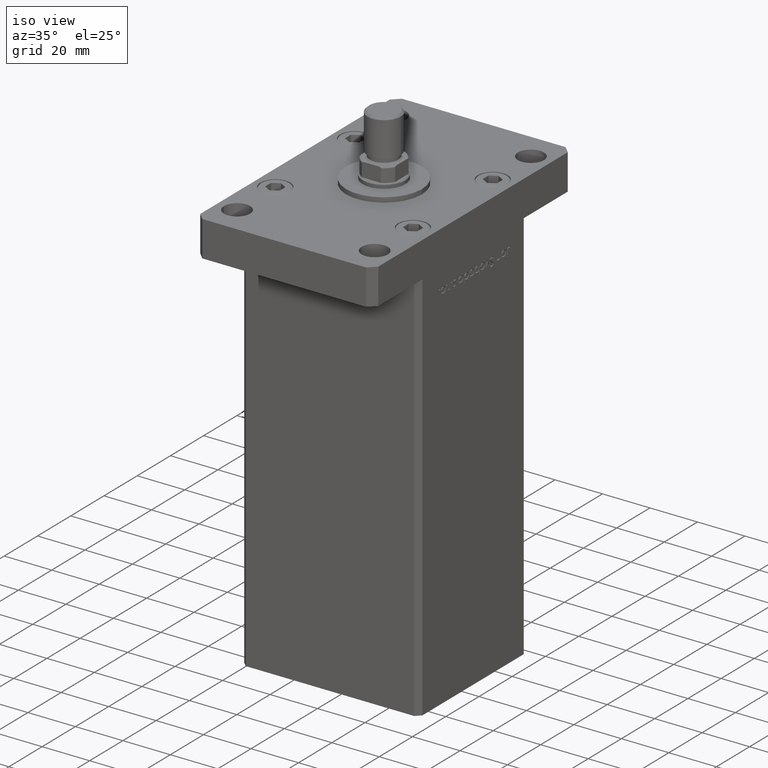
[diagram: clean part render]
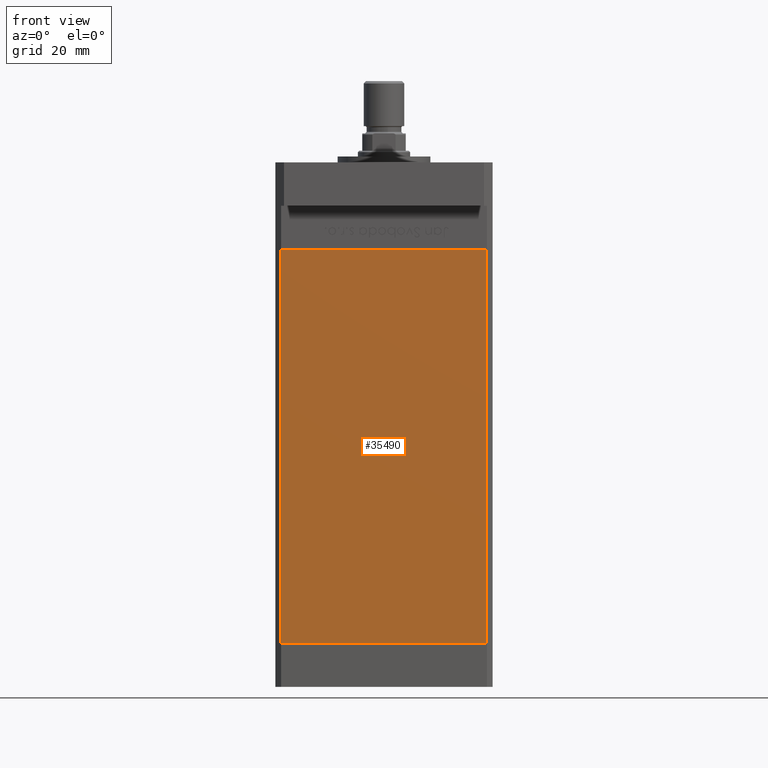
[diagram: tour spotlight — one face highlighted and labeled with its STEP entity id]
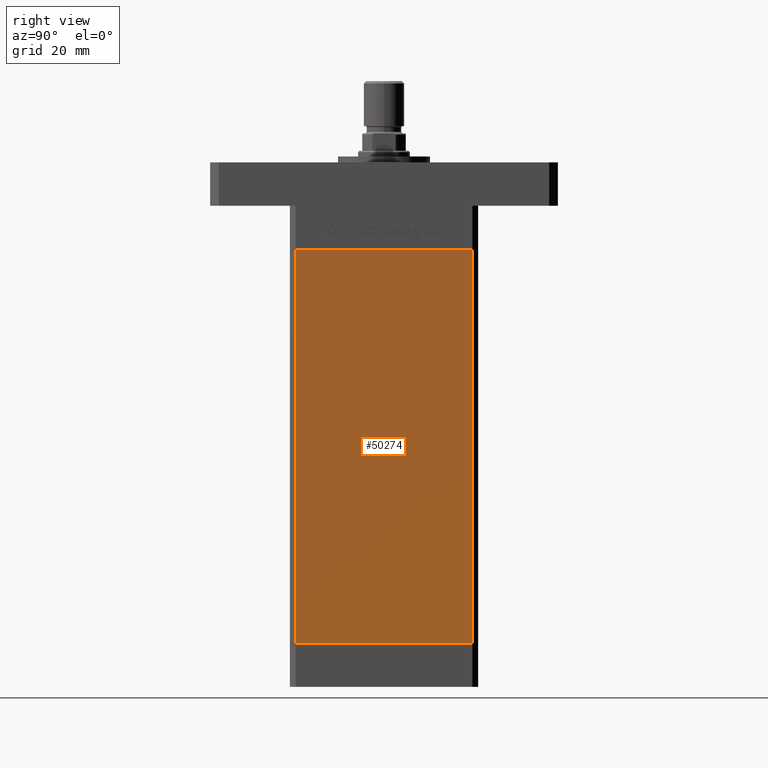
[diagram: tour spotlight — one face highlighted and labeled with its STEP entity id]
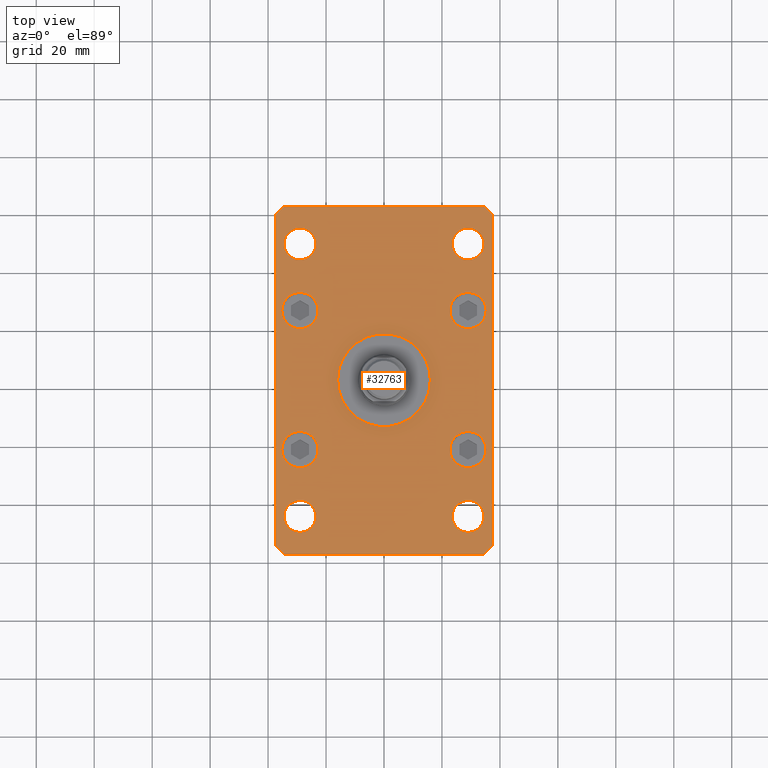
[diagram: tour spotlight — one face highlighted and labeled with its STEP entity id]
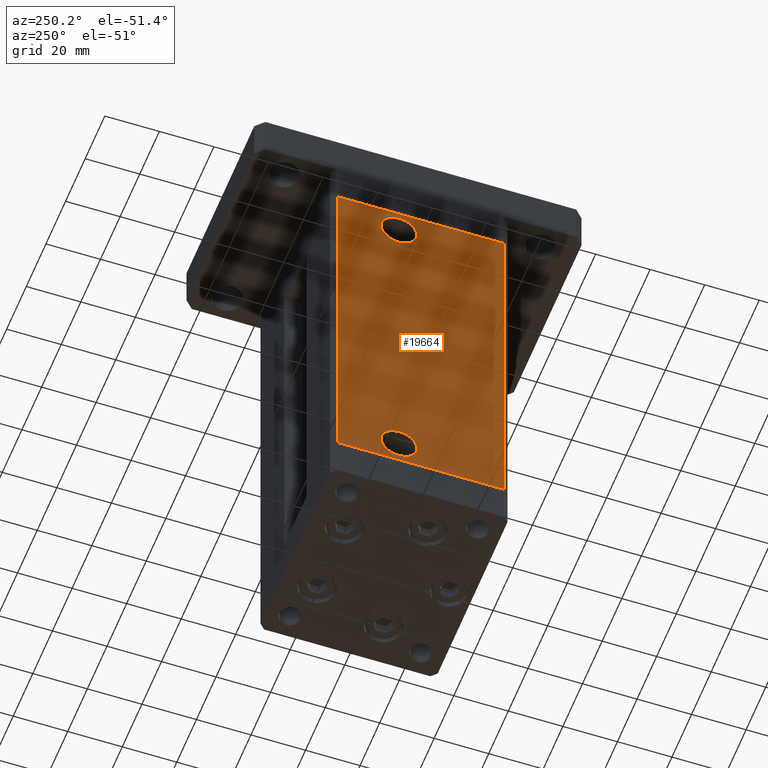
[diagram: tour spotlight — one face highlighted and labeled with its STEP entity id]
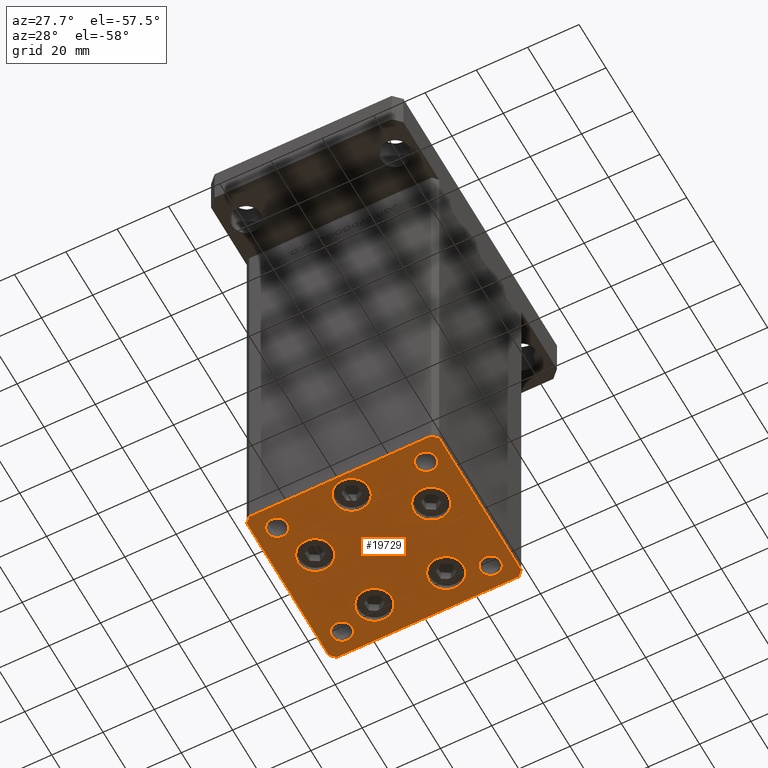
[diagram: tour spotlight — one face highlighted and labeled with its STEP entity id]
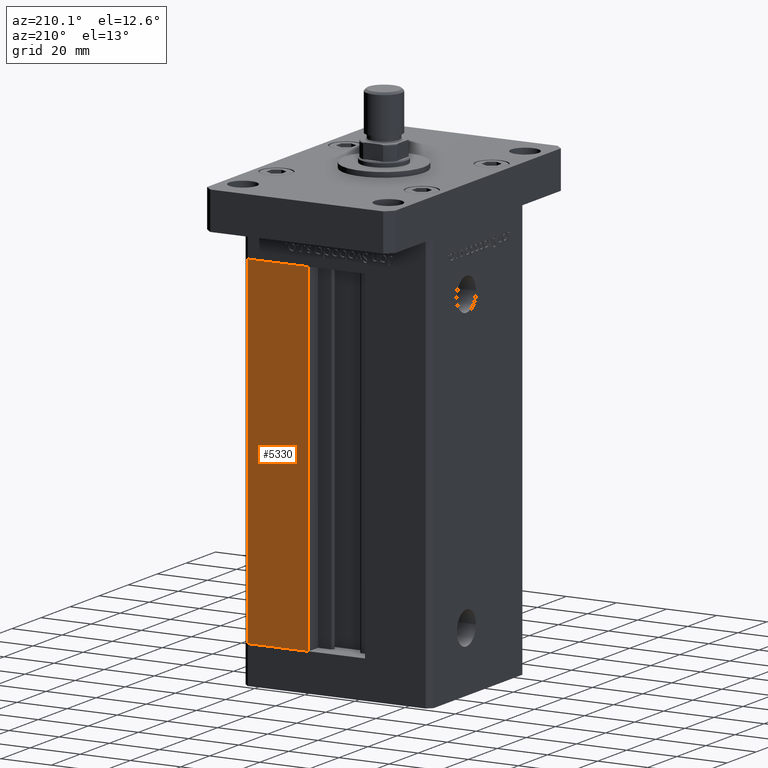
[diagram: tour spotlight — one face highlighted and labeled with its STEP entity id]
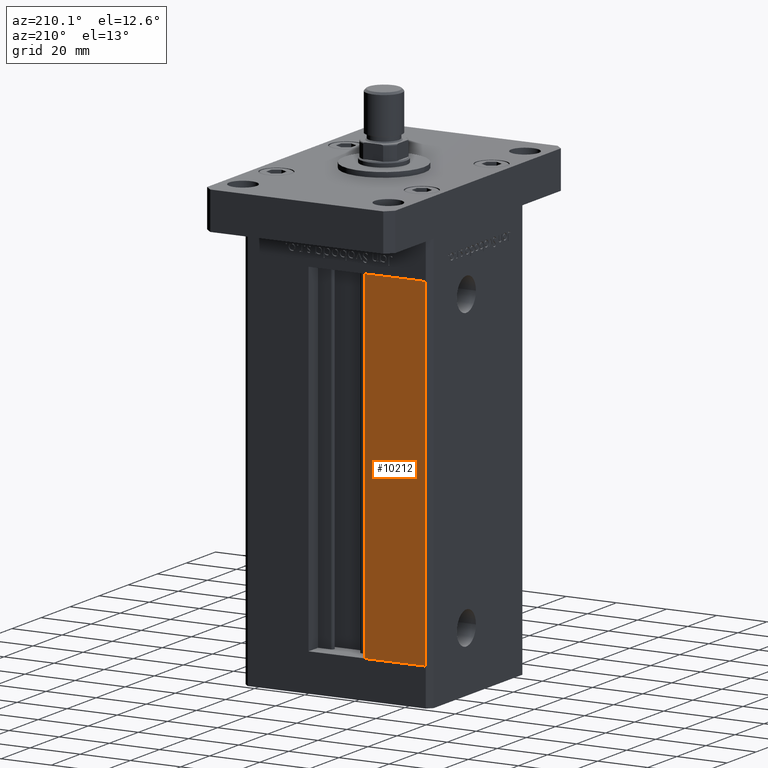
[diagram: tour spotlight — one face highlighted and labeled with its STEP entity id]
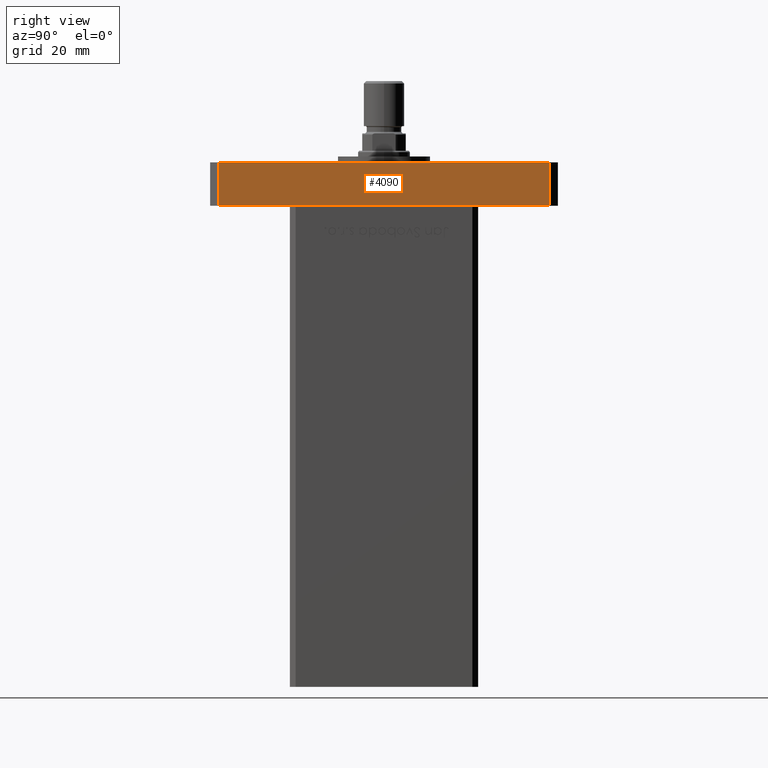
[diagram: tour spotlight — one face highlighted and labeled with its STEP entity id]
A machine part: a face-by-face anatomy tour. The part has 1321 B-rep faces; the first image is the clean iso view, then the 8 largest visible faces are spotlighted one at a time (largest first), each with its STEP entity span.

Face 1 — front view, entity #35490. In plain terms, the highlighted planar face has unit normal (0, 1, 0).
Definition (entity closure, byte-faithful):
#395 = CARTESIAN_POINT ( 'NONE',  ( -35.49999999999999289, -32.50000000000000000, 136.0000000000000000 ) ) ;
#3483 = CARTESIAN_POINT ( 'NONE',  ( -35.49999999999999289, -32.50000000000000000, 136.0000000000000000 ) ) ;
#4507 = VECTOR ( 'NONE', #40636, 1000.000000000000000 ) ;
#4846 = DIRECTION ( 'NONE',  ( 0.000000000000000000, -0.000000000000000000, 1.000000000000000000 ) ) ;
#8063 = ORIENTED_EDGE ( 'NONE', *, *, #16771, .F. ) ;
#8593 = DIRECTION ( 'NONE',  ( -0.000000000000000000, -0.000000000000000000, -1.000000000000000000 ) ) ;
#12127 = VERTEX_POINT ( 'NONE', #13442 ) ;
#12792 = DIRECTION ( 'NONE',  ( 0.000000000000000000, 1.000000000000000000, 0.000000000000000000 ) ) ;
#13442 = CARTESIAN_POINT ( 'NONE',  ( 35.49999999999999289, -32.50000000000000000, 0.000000000000000000 ) ) ;
#14451 = VERTEX_POINT ( 'NONE', #51357 ) ;
#16744 = EDGE_CURVE ( 'NONE', #29244, #12127, #32175, .T. ) ;
#16771 = EDGE_CURVE ( 'NONE', #14451, #29244, #20158, .T. ) ;
#18780 = ORIENTED_EDGE ( 'NONE', *, *, #16744, .F. ) ;
#19536 = VECTOR ( 'NONE', #27485, 1000.000000000000000 ) ;
#19710 = VECTOR ( 'NONE', #8593, 1000.000000000000000 ) ;
#20158 = LINE ( 'NONE', #3483, #50751 ) ;
#20421 = DIRECTION ( 'NONE',  ( 1.000000000000000000, 0.000000000000000000, 0.000000000000000000 ) ) ;
#25102 = PLANE ( 'NONE',  #26011 ) ;
#26011 = AXIS2_PLACEMENT_3D ( 'NONE', #49669, #12792, #4846 ) ;
#27485 = DIRECTION ( 'NONE',  ( 1.000000000000000000, 0.000000000000000000, 0.000000000000000000 ) ) ;
#28029 = EDGE_CURVE ( 'NONE', #14451, #35065, #29632, .T. ) ;
#28644 = FACE_OUTER_BOUND ( 'NONE', #41925, .T. ) ;
#29244 = VERTEX_POINT ( 'NONE', #40991 ) ;
#29632 = LINE ( 'NONE', #395, #19710 ) ;
#31627 = CARTESIAN_POINT ( 'NONE',  ( -35.49999999999999289, -32.50000000000000000, 0.000000000000000000 ) ) ;
#32175 = LINE ( 'NONE', #41444, #4507 ) ;
#32648 = CARTESIAN_POINT ( 'NONE',  ( -35.49999999999999289, -32.50000000000000000, 0.000000000000000000 ) ) ;
#35065 = VERTEX_POINT ( 'NONE', #31627 ) ;
#35490 = ADVANCED_FACE ( 'NONE', ( #28644 ), #25102, .F. ) ;
#40636 = DIRECTION ( 'NONE',  ( -0.000000000000000000, -0.000000000000000000, -1.000000000000000000 ) ) ;
#40991 = CARTESIAN_POINT ( 'NONE',  ( 35.49999999999999289, -32.50000000000000000, 136.0000000000000000 ) ) ;
#41444 = CARTESIAN_POINT ( 'NONE',  ( 35.49999999999999289, -32.50000000000000000, 136.0000000000000000 ) ) ;
#41925 = EDGE_LOOP ( 'NONE', ( #42530, #18780, #8063, #43758 ) ) ;
#42530 = ORIENTED_EDGE ( 'NONE', *, *, #50466, .T. ) ;
#43758 = ORIENTED_EDGE ( 'NONE', *, *, #28029, .T. ) ;
#44144 = LINE ( 'NONE', #32648, #19536 ) ;
#49669 = CARTESIAN_POINT ( 'NONE',  ( -35.49999999999999289, -32.50000000000000000, 136.0000000000000000 ) ) ;
#50466 = EDGE_CURVE ( 'NONE', #35065, #12127, #44144, .T. ) ;
#50751 = VECTOR ( 'NONE', #20421, 1000.000000000000000 ) ;
#51357 = CARTESIAN_POINT ( 'NONE',  ( -35.49999999999999289, -32.50000000000000000, 136.0000000000000000 ) ) ;

Face 2 — right view, entity #50274. In plain terms, the highlighted planar face has unit normal (1, -0, 0).
Definition (entity closure, byte-faithful):
#456 = PLANE ( 'NONE',  #19471 ) ;
#4095 = DIRECTION ( 'NONE',  ( -0.000000000000000000, -0.000000000000000000, -1.000000000000000000 ) ) ;
#4513 = VECTOR ( 'NONE', #36863, 1000.000000000000000 ) ;
#4560 = DIRECTION ( 'NONE',  ( 2.275047181608927644E-16, 1.000000000000000000, 0.000000000000000000 ) ) ;
#4631 = ORIENTED_EDGE ( 'NONE', *, *, #13268, .T. ) ;
#6316 = DIRECTION ( 'NONE',  ( -2.275047181608927644E-16, -1.000000000000000000, 0.000000000000000000 ) ) ;
#6847 = LINE ( 'NONE', #43470, #24448 ) ;
#6998 = EDGE_CURVE ( 'NONE', #21806, #36776, #6847, .T. ) ;
#7992 = EDGE_CURVE ( 'NONE', #23247, #36776, #25150, .T. ) ;
#10046 = CARTESIAN_POINT ( 'NONE',  ( 37.49999999999999289, -30.50000000000000000, 0.000000000000000000 ) ) ;
#10610 = CARTESIAN_POINT ( 'NONE',  ( 37.50000000000000711, 30.50000000000000000, 136.0000000000000000 ) ) ;
#11342 = VECTOR ( 'NONE', #4095, 1000.000000000000000 ) ;
#13268 = EDGE_CURVE ( 'NONE', #20999, #23247, #32220, .T. ) ;
#19471 = AXIS2_PLACEMENT_3D ( 'NONE', #53270, #45817, #4560 ) ;
#20999 = VERTEX_POINT ( 'NONE', #27219 ) ;
#21634 = ORIENTED_EDGE ( 'NONE', *, *, #6998, .F. ) ;
#21806 = VERTEX_POINT ( 'NONE', #43301 ) ;
#23247 = VERTEX_POINT ( 'NONE', #48607 ) ;
#24448 = VECTOR ( 'NONE', #6316, 1000.000000000000000 ) ;
#25150 = LINE ( 'NONE', #45894, #11342 ) ;
#27219 = CARTESIAN_POINT ( 'NONE',  ( 37.50000000000000711, 30.50000000000000000, 136.0000000000000000 ) ) ;
#27561 = EDGE_CURVE ( 'NONE', #20999, #21806, #51047, .T. ) ;
#29472 = ORIENTED_EDGE ( 'NONE', *, *, #7992, .T. ) ;
#29952 = FACE_OUTER_BOUND ( 'NONE', #53100, .T. ) ;
#32220 = LINE ( 'NONE', #49414, #4513 ) ;
#36776 = VERTEX_POINT ( 'NONE', #10046 ) ;
#36863 = DIRECTION ( 'NONE',  ( -2.275047181608927644E-16, -1.000000000000000000, 0.000000000000000000 ) ) ;
#43301 = CARTESIAN_POINT ( 'NONE',  ( 37.50000000000000711, 30.50000000000000000, 0.000000000000000000 ) ) ;
#43470 = CARTESIAN_POINT ( 'NONE',  ( 37.50000000000000711, 30.50000000000000000, 0.000000000000000000 ) ) ;
#43934 = DIRECTION ( 'NONE',  ( -0.000000000000000000, -0.000000000000000000, -1.000000000000000000 ) ) ;
#45817 = DIRECTION ( 'NONE',  ( 1.000000000000000000, -2.275047181608927644E-16, 0.000000000000000000 ) ) ;
#45894 = CARTESIAN_POINT ( 'NONE',  ( 37.49999999999999289, -30.50000000000000000, 136.0000000000000000 ) ) ;
#48607 = CARTESIAN_POINT ( 'NONE',  ( 37.49999999999999289, -30.50000000000000000, 136.0000000000000000 ) ) ;
#49414 = CARTESIAN_POINT ( 'NONE',  ( 37.50000000000000711, 30.50000000000000000, 136.0000000000000000 ) ) ;
#50274 = ADVANCED_FACE ( 'NONE', ( #29952 ), #456, .T. ) ;
#51047 = LINE ( 'NONE', #10610, #52807 ) ;
#52807 = VECTOR ( 'NONE', #43934, 1000.000000000000000 ) ;
#53100 = EDGE_LOOP ( 'NONE', ( #21634, #53388, #4631, #29472 ) ) ;
#53270 = CARTESIAN_POINT ( 'NONE',  ( 37.50000000000000711, 30.50000000000000000, 136.0000000000000000 ) ) ;
#53388 = ORIENTED_EDGE ( 'NONE', *, *, #27561, .F. ) ;

Face 3 — top view, entity #32763. In plain terms, the highlighted planar face has unit normal (0, 0, 1).
Definition (entity closure, byte-faithful):
#39 = CARTESIAN_POINT ( 'NONE',  ( 37.50000000000011369, -56.99999999999990763, 15.00000000000000000 ) ) ;
#288 = DIRECTION ( 'NONE',  ( 0.000000000000000000, 0.000000000000000000, 1.000000000000000000 ) ) ;
#520 = VERTEX_POINT ( 'NONE', #33005 ) ;
#617 = EDGE_CURVE ( 'NONE', #48211, #28816, #41371, .T. ) ;
#880 = CARTESIAN_POINT ( 'NONE',  ( -28.99999999999999645, -47.00000000000002132, 15.00000000000000000 ) ) ;
#1681 = CARTESIAN_POINT ( 'NONE',  ( 29.00000000000000355, -24.00000000000001421, 15.00000000000000000 ) ) ;
#1798 = CIRCLE ( 'NONE', #20122, 5.499999999999998224 ) ;
#1931 = ORIENTED_EDGE ( 'NONE', *, *, #16598, .F. ) ;
#2195 = EDGE_CURVE ( 'NONE', #51439, #7402, #50446, .T. ) ;
#2521 = EDGE_LOOP ( 'NONE', ( #20479, #28972 ) ) ;
#2612 = CIRCLE ( 'NONE', #5209, 5.499999999999994671 ) ;
#2766 = AXIS2_PLACEMENT_3D ( 'NONE', #16569, #53718, #40137 ) ;
#2918 = DIRECTION ( 'NONE',  ( 0.000000000000000000, 0.000000000000000000, 1.000000000000000000 ) ) ;
#3100 = FACE_BOUND ( 'NONE', #4241, .T. ) ;
#3362 = DIRECTION ( 'NONE',  ( 0.000000000000000000, 0.000000000000000000, 1.000000000000000000 ) ) ;
#3415 = EDGE_CURVE ( 'NONE', #14258, #23180, #12979, .T. ) ;
#3417 = LINE ( 'NONE', #7784, #16412 ) ;
#3809 = DIRECTION ( 'NONE',  ( 1.000000000000000000, 2.011273595335427833E-16, 0.000000000000000000 ) ) ;
#4241 = EDGE_LOOP ( 'NONE', ( #28367, #24726 ) ) ;
#4449 = FACE_BOUND ( 'NONE', #6647, .T. ) ;
#4508 = CARTESIAN_POINT ( 'NONE',  ( -37.49999999999999289, -57.00000000000002132, 15.00000000000000000 ) ) ;
#4999 = DIRECTION ( 'NONE',  ( 1.000000000000000000, 0.000000000000000000, 0.000000000000000000 ) ) ;
#5178 = VERTEX_POINT ( 'NONE', #10067 ) ;
#5209 = AXIS2_PLACEMENT_3D ( 'NONE', #7464, #3362, #23867 ) ;
#5249 = FACE_BOUND ( 'NONE', #23725, .T. ) ;
#5272 = DIRECTION ( 'NONE',  ( 0.000000000000000000, 0.000000000000000000, 1.000000000000000000 ) ) ;
#6647 = EDGE_LOOP ( 'NONE', ( #8204, #12608 ) ) ;
#6841 = EDGE_CURVE ( 'NONE', #13363, #5178, #38995, .T. ) ;
#7141 = CIRCLE ( 'NONE', #17582, 16.00000000000000000 ) ;
#7162 = CARTESIAN_POINT ( 'NONE',  ( 37.50000000000011369, 56.99999999999988631, 15.00000000000000000 ) ) ;
#7251 = CARTESIAN_POINT ( 'NONE',  ( -28.99999999999999645, -24.00000000000002132, 15.00000000000000000 ) ) ;
#7267 = VERTEX_POINT ( 'NONE', #23660 ) ;
#7276 = LINE ( 'NONE', #27507, #27109 ) ;
#7402 = VERTEX_POINT ( 'NONE', #25795 ) ;
#7464 = CARTESIAN_POINT ( 'NONE',  ( 29.00000000000000711, 47.00000000000000711, 15.00000000000000000 ) ) ;
#7469 = DIRECTION ( 'NONE',  ( 1.000000000000000000, 0.000000000000000000, 0.000000000000000000 ) ) ;
#7633 = CARTESIAN_POINT ( 'NONE',  ( 22.75000000000000711, -24.00000000000001421, 15.00000000000000000 ) ) ;
#7784 = CARTESIAN_POINT ( 'NONE',  ( 34.50000000000013500, 59.99999999999998579, 15.00000000000000000 ) ) ;
#8204 = ORIENTED_EDGE ( 'NONE', *, *, #34291, .F. ) ;
#8650 = ORIENTED_EDGE ( 'NONE', *, *, #25440, .F. ) ;
#8849 = CARTESIAN_POINT ( 'NONE',  ( 37.50000000000011369, 56.99999999999988631, 15.00000000000000000 ) ) ;
#9104 = CARTESIAN_POINT ( 'NONE',  ( 0.000000000000000000, 0.000000000000000000, 15.00000000000000000 ) ) ;
#9243 = EDGE_CURVE ( 'NONE', #11115, #48211, #7276, .T. ) ;
#9399 = ORIENTED_EDGE ( 'NONE', *, *, #10690, .T. ) ;
#9606 = EDGE_CURVE ( 'NONE', #23180, #14258, #14036, .T. ) ;
#9879 = DIRECTION ( 'NONE',  ( 1.000000000000000000, 0.000000000000000000, 0.000000000000000000 ) ) ;
#9896 = EDGE_LOOP ( 'NONE', ( #28354, #8650 ) ) ;
#9994 = AXIS2_PLACEMENT_3D ( 'NONE', #12790, #31601, #10569 ) ;
#10067 = CARTESIAN_POINT ( 'NONE',  ( -22.75000000000000000, -24.00000000000002132, 15.00000000000000000 ) ) ;
#10318 = CARTESIAN_POINT ( 'NONE',  ( 29.00000000000001066, -47.00000000000001421, 15.00000000000000000 ) ) ;
#10569 = DIRECTION ( 'NONE',  ( 1.000000000000000000, 0.000000000000000000, 0.000000000000000000 ) ) ;
#10690 = EDGE_CURVE ( 'NONE', #44931, #50270, #23555, .T. ) ;
#10841 = CIRCLE ( 'NONE', #36154, 6.249999999999998224 ) ;
#11115 = VERTEX_POINT ( 'NONE', #40144 ) ;
#11166 = CARTESIAN_POINT ( 'NONE',  ( -28.99999999999999645, -47.00000000000002132, 15.00000000000000000 ) ) ;
#11857 = VERTEX_POINT ( 'NONE', #47673 ) ;
#11926 = CARTESIAN_POINT ( 'NONE',  ( -37.49999999999999289, -57.00000000000002132, 15.00000000000000000 ) ) ;
#12055 = DIRECTION ( 'NONE',  ( 1.000000000000000000, 0.000000000000000000, 0.000000000000000000 ) ) ;
#12178 = EDGE_LOOP ( 'NONE', ( #1931, #35792 ) ) ;
#12356 = VERTEX_POINT ( 'NONE', #53840 ) ;
#12454 = DIRECTION ( 'NONE',  ( 1.000000000000000000, 0.000000000000000000, 0.000000000000000000 ) ) ;
#12608 = ORIENTED_EDGE ( 'NONE', *, *, #46483, .F. ) ;
#12790 = CARTESIAN_POINT ( 'NONE',  ( -29.00000000000000355, 47.00000000000000000, 15.00000000000000000 ) ) ;
#12919 = FACE_OUTER_BOUND ( 'NONE', #33376, .T. ) ;
#12979 = CIRCLE ( 'NONE', #41754, 5.499999999999994671 ) ;
#13168 = AXIS2_PLACEMENT_3D ( 'NONE', #880, #26847, #47057 ) ;
#13232 = CARTESIAN_POINT ( 'NONE',  ( 34.50000000000000711, -47.00000000000001421, 15.00000000000000000 ) ) ;
#13331 = CARTESIAN_POINT ( 'NONE',  ( -35.25000000000000000, -24.00000000000002132, 15.00000000000000000 ) ) ;
#13363 = VERTEX_POINT ( 'NONE', #13331 ) ;
#13883 = VECTOR ( 'NONE', #49082, 1000.000000000000000 ) ;
#13915 = ORIENTED_EDGE ( 'NONE', *, *, #36848, .T. ) ;
#14036 = CIRCLE ( 'NONE', #13168, 5.499999999999994671 ) ;
#14115 = AXIS2_PLACEMENT_3D ( 'NONE', #17185, #47233, #22373 ) ;
#14258 = VERTEX_POINT ( 'NONE', #28445 ) ;
#14393 = EDGE_LOOP ( 'NONE', ( #53293, #43937 ) ) ;
#15557 = AXIS2_PLACEMENT_3D ( 'NONE', #7251, #23922, #36478 ) ;
#15681 = FACE_BOUND ( 'NONE', #46964, .T. ) ;
#15814 = DIRECTION ( 'NONE',  ( 0.000000000000000000, 0.000000000000000000, 1.000000000000000000 ) ) ;
#15984 = DIRECTION ( 'NONE',  ( -7.304098846218132695E-16, -1.000000000000000000, 0.000000000000000000 ) ) ;
#16254 = DIRECTION ( 'NONE',  ( -1.000000000000000000, -2.011273595335426847E-16, 0.000000000000000000 ) ) ;
#16412 = VECTOR ( 'NONE', #16254, 1000.000000000000000 ) ;
#16569 = CARTESIAN_POINT ( 'NONE',  ( -29.00000000000000355, 24.00000000000000000, 15.00000000000000000 ) ) ;
#16598 = EDGE_CURVE ( 'NONE', #33484, #28028, #19374, .T. ) ;
#17185 = CARTESIAN_POINT ( 'NONE',  ( 29.00000000000000711, 24.00000000000000711, 15.00000000000000000 ) ) ;
#17582 = AXIS2_PLACEMENT_3D ( 'NONE', #37730, #288, #12055 ) ;
#17816 = PLANE ( 'NONE',  #50338 ) ;
#18356 = DIRECTION ( 'NONE',  ( 0.000000000000000000, 0.000000000000000000, 1.000000000000000000 ) ) ;
#18969 = CARTESIAN_POINT ( 'NONE',  ( 23.50000000000001776, 47.00000000000000711, 15.00000000000000000 ) ) ;
#19037 = VECTOR ( 'NONE', #37479, 1000.000000000000000 ) ;
#19179 = EDGE_CURVE ( 'NONE', #28028, #33484, #39594, .T. ) ;
#19374 = CIRCLE ( 'NONE', #14115, 6.250000000000001776 ) ;
#19740 = CARTESIAN_POINT ( 'NONE',  ( 16.00000000000000000, 1.959434878635765131E-15, 15.00000000000000000 ) ) ;
#19774 = FACE_BOUND ( 'NONE', #2521, .T. ) ;
#20117 = DIRECTION ( 'NONE',  ( -0.7071067811865507924, -0.7071067811865442421, 0.000000000000000000 ) ) ;
#20122 = AXIS2_PLACEMENT_3D ( 'NONE', #10318, #48271, #23151 ) ;
#20479 = ORIENTED_EDGE ( 'NONE', *, *, #24522, .F. ) ;
#20678 = CIRCLE ( 'NONE', #33775, 5.499999999999994671 ) ;
#21092 = VECTOR ( 'NONE', #53313, 1000.000000000000000 ) ;
#21144 = VERTEX_POINT ( 'NONE', #28820 ) ;
#21291 = EDGE_LOOP ( 'NONE', ( #51838, #23127 ) ) ;
#22373 = DIRECTION ( 'NONE',  ( 1.000000000000000000, 0.000000000000000000, 0.000000000000000000 ) ) ;
#22702 = ORIENTED_EDGE ( 'NONE', *, *, #3415, .F. ) ;
#23127 = ORIENTED_EDGE ( 'NONE', *, *, #48426, .F. ) ;
#23151 = DIRECTION ( 'NONE',  ( 1.000000000000000000, 0.000000000000000000, 0.000000000000000000 ) ) ;
#23180 = VERTEX_POINT ( 'NONE', #23216 ) ;
#23216 = CARTESIAN_POINT ( 'NONE',  ( -23.50000000000000355, -47.00000000000002132, 15.00000000000000000 ) ) ;
#23250 = CARTESIAN_POINT ( 'NONE',  ( -16.00000000000000000, 0.000000000000000000, 15.00000000000000000 ) ) ;
#23365 = CIRCLE ( 'NONE', #25099, 5.499999999999998224 ) ;
#23555 = LINE ( 'NONE', #7162, #21092 ) ;
#23660 = CARTESIAN_POINT ( 'NONE',  ( 23.50000000000001776, -47.00000000000001421, 15.00000000000000000 ) ) ;
#23698 = CARTESIAN_POINT ( 'NONE',  ( 29.00000000000001066, -47.00000000000001421, 15.00000000000000000 ) ) ;
#23725 = EDGE_LOOP ( 'NONE', ( #46557, #26806 ) ) ;
#23731 = CARTESIAN_POINT ( 'NONE',  ( -34.50000000000000000, 47.00000000000000000, 15.00000000000000000 ) ) ;
#23867 = DIRECTION ( 'NONE',  ( 1.000000000000000000, 0.000000000000000000, 0.000000000000000000 ) ) ;
#23875 = FACE_BOUND ( 'NONE', #21291, .T. ) ;
#23922 = DIRECTION ( 'NONE',  ( 0.000000000000000000, 0.000000000000000000, 1.000000000000000000 ) ) ;
#24056 = CARTESIAN_POINT ( 'NONE',  ( 34.50000000000013500, 59.99999999999998579, 15.00000000000000000 ) ) ;
#24522 = EDGE_CURVE ( 'NONE', #41171, #12356, #10841, .T. ) ;
#24726 = ORIENTED_EDGE ( 'NONE', *, *, #48666, .F. ) ;
#24855 = LINE ( 'NONE', #34584, #34546 ) ;
#25099 = AXIS2_PLACEMENT_3D ( 'NONE', #23698, #2918, #40353 ) ;
#25440 = EDGE_CURVE ( 'NONE', #7402, #51439, #27430, .T. ) ;
#25795 = CARTESIAN_POINT ( 'NONE',  ( -23.50000000000001066, 47.00000000000000000, 15.00000000000000000 ) ) ;
#26497 = AXIS2_PLACEMENT_3D ( 'NONE', #53919, #49544, #45458 ) ;
#26806 = ORIENTED_EDGE ( 'NONE', *, *, #43633, .F. ) ;
#26830 = DIRECTION ( 'NONE',  ( 0.000000000000000000, 0.000000000000000000, 1.000000000000000000 ) ) ;
#26847 = DIRECTION ( 'NONE',  ( 0.000000000000000000, 0.000000000000000000, 1.000000000000000000 ) ) ;
#27109 = VECTOR ( 'NONE', #20117, 1000.000000000000114 ) ;
#27404 = CARTESIAN_POINT ( 'NONE',  ( -28.99999999999999645, -24.00000000000002132, 15.00000000000000000 ) ) ;
#27430 = CIRCLE ( 'NONE', #9994, 5.499999999999994671 ) ;
#27507 = CARTESIAN_POINT ( 'NONE',  ( -34.49999999999992184, 59.99999999999997158, 15.00000000000000000 ) ) ;
#27517 = LINE ( 'NONE', #11926, #37406 ) ;
#28028 = VERTEX_POINT ( 'NONE', #46024 ) ;
#28161 = VERTEX_POINT ( 'NONE', #13232 ) ;
#28354 = ORIENTED_EDGE ( 'NONE', *, *, #2195, .F. ) ;
#28367 = ORIENTED_EDGE ( 'NONE', *, *, #46982, .F. ) ;
#28445 = CARTESIAN_POINT ( 'NONE',  ( -34.49999999999999289, -47.00000000000002132, 15.00000000000000000 ) ) ;
#28688 = ORIENTED_EDGE ( 'NONE', *, *, #39397, .T. ) ;
#28816 = VERTEX_POINT ( 'NONE', #4508 ) ;
#28820 = CARTESIAN_POINT ( 'NONE',  ( 34.50000000000000000, 47.00000000000000711, 15.00000000000000000 ) ) ;
#28972 = ORIENTED_EDGE ( 'NONE', *, *, #39864, .F. ) ;
#29042 = DIRECTION ( 'NONE',  ( 0.000000000000000000, 0.000000000000000000, 1.000000000000000000 ) ) ;
#29767 = DIRECTION ( 'NONE',  ( 0.000000000000000000, 0.000000000000000000, 1.000000000000000000 ) ) ;
#29773 = ORIENTED_EDGE ( 'NONE', *, *, #9243, .T. ) ;
#29845 = DIRECTION ( 'NONE',  ( 1.000000000000000000, 0.000000000000000000, -0.000000000000000000 ) ) ;
#29908 = CARTESIAN_POINT ( 'NONE',  ( -29.00000000000000355, 24.00000000000000000, 15.00000000000000000 ) ) ;
#30107 = CARTESIAN_POINT ( 'NONE',  ( 0.000000000000000000, 0.000000000000000000, 15.00000000000000000 ) ) ;
#30111 = EDGE_CURVE ( 'NONE', #11857, #31073, #24855, .T. ) ;
#30652 = AXIS2_PLACEMENT_3D ( 'NONE', #29908, #34011, #12454 ) ;
#30809 = VERTEX_POINT ( 'NONE', #23250 ) ;
#31073 = VERTEX_POINT ( 'NONE', #47238 ) ;
#31233 = DIRECTION ( 'NONE',  ( 0.000000000000000000, 0.000000000000000000, 1.000000000000000000 ) ) ;
#31334 = CARTESIAN_POINT ( 'NONE',  ( -35.25000000000000000, 24.00000000000000000, 15.00000000000000000 ) ) ;
#31601 = DIRECTION ( 'NONE',  ( 0.000000000000000000, 0.000000000000000000, 1.000000000000000000 ) ) ;
#31926 = EDGE_CURVE ( 'NONE', #32713, #21144, #20678, .T. ) ;
#32713 = VERTEX_POINT ( 'NONE', #18969 ) ;
#32763 = ADVANCED_FACE ( 'NONE', ( #23875, #3100, #19774, #53094, #15681, #12919, #5249, #37782, #33944, #4449 ), #17816, .T. ) ;
#32942 = VECTOR ( 'NONE', #15984, 1000.000000000000000 ) ;
#32990 = CIRCLE ( 'NONE', #40858, 6.249999999999998224 ) ;
#33005 = CARTESIAN_POINT ( 'NONE',  ( 37.50000000000011369, -56.99999999999990763, 15.00000000000000000 ) ) ;
#33376 = EDGE_LOOP ( 'NONE', ( #47824, #39392, #39365, #9399, #28688, #29773, #48246, #13915 ) ) ;
#33484 = VERTEX_POINT ( 'NONE', #42143 ) ;
#33775 = AXIS2_PLACEMENT_3D ( 'NONE', #37441, #29767, #34138 ) ;
#33944 = FACE_BOUND ( 'NONE', #12178, .T. ) ;
#34011 = DIRECTION ( 'NONE',  ( 0.000000000000000000, 0.000000000000000000, 1.000000000000000000 ) ) ;
#34138 = DIRECTION ( 'NONE',  ( 1.000000000000000000, 0.000000000000000000, 0.000000000000000000 ) ) ;
#34291 = EDGE_CURVE ( 'NONE', #7267, #28161, #23365, .T. ) ;
#34546 = VECTOR ( 'NONE', #3809, 1000.000000000000000 ) ;
#34584 = CARTESIAN_POINT ( 'NONE',  ( -34.49999999999999289, -60.00000000000002132, 15.00000000000000000 ) ) ;
#34839 = EDGE_CURVE ( 'NONE', #30809, #45219, #42572, .T. ) ;
#35021 = CARTESIAN_POINT ( 'NONE',  ( -29.00000000000000355, 47.00000000000000000, 15.00000000000000000 ) ) ;
#35792 = ORIENTED_EDGE ( 'NONE', *, *, #19179, .F. ) ;
#36154 = AXIS2_PLACEMENT_3D ( 'NONE', #41600, #29042, #7469 ) ;
#36478 = DIRECTION ( 'NONE',  ( 1.000000000000000000, 0.000000000000000000, 0.000000000000000000 ) ) ;
#36797 = CARTESIAN_POINT ( 'NONE',  ( 34.50000000000002132, -60.00000000000000711, 15.00000000000000000 ) ) ;
#36848 = EDGE_CURVE ( 'NONE', #28816, #11857, #27517, .T. ) ;
#37357 = AXIS2_PLACEMENT_3D ( 'NONE', #35021, #26830, #9879 ) ;
#37406 = VECTOR ( 'NONE', #44175, 1000.000000000000114 ) ;
#37441 = CARTESIAN_POINT ( 'NONE',  ( 29.00000000000000711, 47.00000000000000711, 15.00000000000000000 ) ) ;
#37479 = DIRECTION ( 'NONE',  ( 0.000000000000000000, 1.000000000000000000, 0.000000000000000000 ) ) ;
#37730 = CARTESIAN_POINT ( 'NONE',  ( 0.000000000000000000, 0.000000000000000000, 15.00000000000000000 ) ) ;
#37782 = FACE_BOUND ( 'NONE', #14393, .T. ) ;
#37865 = EDGE_CURVE ( 'NONE', #31073, #520, #44721, .T. ) ;
#38444 = EDGE_CURVE ( 'NONE', #520, #44931, #41565, .T. ) ;
#38854 = CARTESIAN_POINT ( 'NONE',  ( -37.49999999999990763, 57.00000000000000711, 15.00000000000000000 ) ) ;
#38995 = CIRCLE ( 'NONE', #40116, 6.249999999999998224 ) ;
#39295 = EDGE_CURVE ( 'NONE', #5178, #13363, #39966, .T. ) ;
#39365 = ORIENTED_EDGE ( 'NONE', *, *, #38444, .T. ) ;
#39392 = ORIENTED_EDGE ( 'NONE', *, *, #37865, .T. ) ;
#39397 = EDGE_CURVE ( 'NONE', #50270, #11115, #3417, .T. ) ;
#39594 = CIRCLE ( 'NONE', #26497, 6.250000000000001776 ) ;
#39864 = EDGE_CURVE ( 'NONE', #12356, #41171, #32990, .T. ) ;
#39966 = CIRCLE ( 'NONE', #15557, 6.249999999999998224 ) ;
#40048 = CARTESIAN_POINT ( 'NONE',  ( -22.75000000000000711, 24.00000000000000000, 15.00000000000000000 ) ) ;
#40116 = AXIS2_PLACEMENT_3D ( 'NONE', #27404, #31233, #47894 ) ;
#40137 = DIRECTION ( 'NONE',  ( 1.000000000000000000, 0.000000000000000000, 0.000000000000000000 ) ) ;
#40144 = CARTESIAN_POINT ( 'NONE',  ( -34.49999999999992184, 59.99999999999997158, 15.00000000000000000 ) ) ;
#40353 = DIRECTION ( 'NONE',  ( 1.000000000000000000, 0.000000000000000000, 0.000000000000000000 ) ) ;
#40707 = ORIENTED_EDGE ( 'NONE', *, *, #9606, .F. ) ;
#40858 = AXIS2_PLACEMENT_3D ( 'NONE', #1681, #18356, #51678 ) ;
#41171 = VERTEX_POINT ( 'NONE', #7633 ) ;
#41371 = LINE ( 'NONE', #44674, #32942 ) ;
#41565 = LINE ( 'NONE', #39, #19037 ) ;
#41600 = CARTESIAN_POINT ( 'NONE',  ( 29.00000000000000355, -24.00000000000001421, 15.00000000000000000 ) ) ;
#41754 = AXIS2_PLACEMENT_3D ( 'NONE', #11166, #15814, #44762 ) ;
#42143 = CARTESIAN_POINT ( 'NONE',  ( 22.75000000000000355, 24.00000000000000711, 15.00000000000000000 ) ) ;
#42572 = CIRCLE ( 'NONE', #46948, 16.00000000000000000 ) ;
#43418 = VERTEX_POINT ( 'NONE', #40048 ) ;
#43633 = EDGE_CURVE ( 'NONE', #21144, #32713, #2612, .T. ) ;
#43937 = ORIENTED_EDGE ( 'NONE', *, *, #39295, .F. ) ;
#44175 = DIRECTION ( 'NONE',  ( 0.7071067811865474617, -0.7071067811865474617, 0.000000000000000000 ) ) ;
#44674 = CARTESIAN_POINT ( 'NONE',  ( -37.49999999999990763, 57.00000000000000711, 15.00000000000000000 ) ) ;
#44721 = LINE ( 'NONE', #36797, #13883 ) ;
#44762 = DIRECTION ( 'NONE',  ( 1.000000000000000000, 0.000000000000000000, 0.000000000000000000 ) ) ;
#44931 = VERTEX_POINT ( 'NONE', #8849 ) ;
#45219 = VERTEX_POINT ( 'NONE', #19740 ) ;
#45458 = DIRECTION ( 'NONE',  ( 1.000000000000000000, 0.000000000000000000, 0.000000000000000000 ) ) ;
#45506 = CIRCLE ( 'NONE', #2766, 6.249999999999998224 ) ;
#46024 = CARTESIAN_POINT ( 'NONE',  ( 35.25000000000000711, 24.00000000000000711, 15.00000000000000000 ) ) ;
#46483 = EDGE_CURVE ( 'NONE', #28161, #7267, #1798, .T. ) ;
#46557 = ORIENTED_EDGE ( 'NONE', *, *, #31926, .F. ) ;
#46885 = VERTEX_POINT ( 'NONE', #31334 ) ;
#46948 = AXIS2_PLACEMENT_3D ( 'NONE', #9104, #5272, #4999 ) ;
#46964 = EDGE_LOOP ( 'NONE', ( #22702, #40707 ) ) ;
#46982 = EDGE_CURVE ( 'NONE', #46885, #43418, #48929, .T. ) ;
#47057 = DIRECTION ( 'NONE',  ( 1.000000000000000000, 0.000000000000000000, 0.000000000000000000 ) ) ;
#47233 = DIRECTION ( 'NONE',  ( 0.000000000000000000, 0.000000000000000000, 1.000000000000000000 ) ) ;
#47238 = CARTESIAN_POINT ( 'NONE',  ( 34.50000000000002132, -60.00000000000000711, 15.00000000000000000 ) ) ;
#47673 = CARTESIAN_POINT ( 'NONE',  ( -34.49999999999999289, -60.00000000000002132, 15.00000000000000000 ) ) ;
#47824 = ORIENTED_EDGE ( 'NONE', *, *, #30111, .T. ) ;
#47894 = DIRECTION ( 'NONE',  ( 1.000000000000000000, 0.000000000000000000, 0.000000000000000000 ) ) ;
#48211 = VERTEX_POINT ( 'NONE', #38854 ) ;
#48246 = ORIENTED_EDGE ( 'NONE', *, *, #617, .T. ) ;
#48271 = DIRECTION ( 'NONE',  ( 0.000000000000000000, 0.000000000000000000, 1.000000000000000000 ) ) ;
#48426 = EDGE_CURVE ( 'NONE', #45219, #30809, #7141, .T. ) ;
#48666 = EDGE_CURVE ( 'NONE', #43418, #46885, #45506, .T. ) ;
#48929 = CIRCLE ( 'NONE', #30652, 6.249999999999998224 ) ;
#49082 = DIRECTION ( 'NONE',  ( 0.7071067811865467956, 0.7071067811865483499, 0.000000000000000000 ) ) ;
#49544 = DIRECTION ( 'NONE',  ( 0.000000000000000000, 0.000000000000000000, 1.000000000000000000 ) ) ;
#50068 = DIRECTION ( 'NONE',  ( 0.000000000000000000, 0.000000000000000000, 1.000000000000000000 ) ) ;
#50270 = VERTEX_POINT ( 'NONE', #24056 ) ;
#50338 = AXIS2_PLACEMENT_3D ( 'NONE', #30107, #50068, #29845 ) ;
#50446 = CIRCLE ( 'NONE', #37357, 5.499999999999994671 ) ;
#51439 = VERTEX_POINT ( 'NONE', #23731 ) ;
#51678 = DIRECTION ( 'NONE',  ( 1.000000000000000000, 0.000000000000000000, 0.000000000000000000 ) ) ;
#51838 = ORIENTED_EDGE ( 'NONE', *, *, #34839, .F. ) ;
#53094 = FACE_BOUND ( 'NONE', #9896, .T. ) ;
#53293 = ORIENTED_EDGE ( 'NONE', *, *, #6841, .F. ) ;
#53313 = DIRECTION ( 'NONE',  ( -0.7071067811865335839, 0.7071067811865614505, 0.000000000000000000 ) ) ;
#53718 = DIRECTION ( 'NONE',  ( 0.000000000000000000, 0.000000000000000000, 1.000000000000000000 ) ) ;
#53840 = CARTESIAN_POINT ( 'NONE',  ( 35.25000000000000000, -24.00000000000001421, 15.00000000000000000 ) ) ;
#53919 = CARTESIAN_POINT ( 'NONE',  ( 29.00000000000000711, 24.00000000000000711, 15.00000000000000000 ) ) ;

Face 4 — auxiliary view, entity #19664. In plain terms, the highlighted planar face has unit normal (1, 0, 0).
Definition (entity closure, byte-faithful):
#669 = VERTEX_POINT ( 'NONE', #9119 ) ;
#1303 = CARTESIAN_POINT ( 'NONE',  ( -37.50000000000000000, 7.999999999999991118, 9.000000000000000000 ) ) ;
#2988 = DIRECTION ( 'NONE',  ( -2.275047181608927644E-16, 1.000000000000000000, 0.000000000000000000 ) ) ;
#6258 = ORIENTED_EDGE ( 'NONE', *, *, #34060, .F. ) ;
#8555 = CARTESIAN_POINT ( 'NONE',  ( -37.50000000000000711, 30.50000000000000000, 136.0000000000000000 ) ) ;
#9119 = CARTESIAN_POINT ( 'NONE',  ( -37.50000000000000000, 14.58000000000000718, 127.0000000000000000 ) ) ;
#9163 = CARTESIAN_POINT ( 'NONE',  ( -37.50000000000000000, 1.419999999999988161, 9.000000000000000000 ) ) ;
#9803 = VERTEX_POINT ( 'NONE', #44037 ) ;
#10545 = EDGE_CURVE ( 'NONE', #35275, #9803, #12667, .T. ) ;
#10732 = EDGE_LOOP ( 'NONE', ( #14335, #40650, #29855, #33760 ) ) ;
#10971 = LINE ( 'NONE', #27640, #14032 ) ;
#11438 = LINE ( 'NONE', #40392, #50644 ) ;
#11589 = CARTESIAN_POINT ( 'NONE',  ( -37.50000000000000000, 7.999999999999991118, 9.000000000000000000 ) ) ;
#12175 = AXIS2_PLACEMENT_3D ( 'NONE', #16242, #24996, #37006 ) ;
#12323 = CARTESIAN_POINT ( 'NONE',  ( -37.49999999999999289, -30.50000000000000000, 0.000000000000000000 ) ) ;
#12667 = LINE ( 'NONE', #8555, #52437 ) ;
#13444 = AXIS2_PLACEMENT_3D ( 'NONE', #43727, #52983, #2988 ) ;
#14032 = VECTOR ( 'NONE', #44305, 1000.000000000000000 ) ;
#14126 = CIRCLE ( 'NONE', #46364, 6.580000000000003624 ) ;
#14301 = EDGE_CURVE ( 'NONE', #35275, #25218, #10971, .T. ) ;
#14335 = ORIENTED_EDGE ( 'NONE', *, *, #46602, .T. ) ;
#14764 = FACE_OUTER_BOUND ( 'NONE', #10732, .T. ) ;
#15590 = ORIENTED_EDGE ( 'NONE', *, *, #15835, .F. ) ;
#15824 = AXIS2_PLACEMENT_3D ( 'NONE', #45060, #36053, #31692 ) ;
#15835 = EDGE_CURVE ( 'NONE', #669, #44095, #49814, .T. ) ;
#16242 = CARTESIAN_POINT ( 'NONE',  ( -37.50000000000000000, 7.999999999999991118, 127.0000000000000000 ) ) ;
#16497 = DIRECTION ( 'NONE',  ( 2.275047181608927644E-16, -1.000000000000000000, 0.000000000000000000 ) ) ;
#16574 = DIRECTION ( 'NONE',  ( -0.000000000000000000, -0.000000000000000000, -1.000000000000000000 ) ) ;
#17925 = VERTEX_POINT ( 'NONE', #42797 ) ;
#19251 = DIRECTION ( 'NONE',  ( 0.000000000000000000, -1.000000000000000000, 0.000000000000000000 ) ) ;
#19664 = ADVANCED_FACE ( 'NONE', ( #31424, #48343, #14764 ), #40418, .F. ) ;
#21476 = CARTESIAN_POINT ( 'NONE',  ( -37.49999999999999289, -30.50000000000000000, 136.0000000000000000 ) ) ;
#24918 = VERTEX_POINT ( 'NONE', #12323 ) ;
#24996 = DIRECTION ( 'NONE',  ( -1.000000000000000000, -2.275047181608927644E-16, 0.000000000000000000 ) ) ;
#25218 = VERTEX_POINT ( 'NONE', #48592 ) ;
#25473 = ORIENTED_EDGE ( 'NONE', *, *, #47979, .F. ) ;
#27640 = CARTESIAN_POINT ( 'NONE',  ( -37.50000000000000711, 30.50000000000000000, 136.0000000000000000 ) ) ;
#29452 = VECTOR ( 'NONE', #16574, 1000.000000000000000 ) ;
#29855 = ORIENTED_EDGE ( 'NONE', *, *, #10545, .F. ) ;
#30539 = DIRECTION ( 'NONE',  ( -1.000000000000000000, -2.275047181608927644E-16, 0.000000000000000000 ) ) ;
#31084 = DIRECTION ( 'NONE',  ( 0.000000000000000000, -1.000000000000000000, 0.000000000000000000 ) ) ;
#31424 = FACE_BOUND ( 'NONE', #32726, .T. ) ;
#31692 = DIRECTION ( 'NONE',  ( 0.000000000000000000, -1.000000000000000000, 0.000000000000000000 ) ) ;
#32726 = EDGE_LOOP ( 'NONE', ( #6258, #25473 ) ) ;
#33108 = CIRCLE ( 'NONE', #12175, 6.580000000000015170 ) ;
#33760 = ORIENTED_EDGE ( 'NONE', *, *, #14301, .T. ) ;
#34037 = LINE ( 'NONE', #21476, #29452 ) ;
#34060 = EDGE_CURVE ( 'NONE', #37013, #17925, #48627, .T. ) ;
#34160 = ORIENTED_EDGE ( 'NONE', *, *, #38537, .F. ) ;
#34329 = EDGE_CURVE ( 'NONE', #9803, #24918, #34037, .T. ) ;
#35275 = VERTEX_POINT ( 'NONE', #36975 ) ;
#36053 = DIRECTION ( 'NONE',  ( -1.000000000000000000, -2.275047181608927644E-16, 0.000000000000000000 ) ) ;
#36975 = CARTESIAN_POINT ( 'NONE',  ( -37.50000000000000711, 30.50000000000000000, 136.0000000000000000 ) ) ;
#36983 = DIRECTION ( 'NONE',  ( -1.000000000000000000, -2.275047181608927644E-16, 0.000000000000000000 ) ) ;
#37006 = DIRECTION ( 'NONE',  ( 0.000000000000000000, -1.000000000000000000, 0.000000000000000000 ) ) ;
#37013 = VERTEX_POINT ( 'NONE', #9163 ) ;
#37330 = AXIS2_PLACEMENT_3D ( 'NONE', #1303, #30539, #31084 ) ;
#38537 = EDGE_CURVE ( 'NONE', #44095, #669, #33108, .T. ) ;
#39728 = EDGE_LOOP ( 'NONE', ( #34160, #15590 ) ) ;
#40392 = CARTESIAN_POINT ( 'NONE',  ( -37.50000000000000711, 30.50000000000000000, 0.000000000000000000 ) ) ;
#40418 = PLANE ( 'NONE',  #13444 ) ;
#40650 = ORIENTED_EDGE ( 'NONE', *, *, #34329, .F. ) ;
#42797 = CARTESIAN_POINT ( 'NONE',  ( -37.50000000000000000, 14.57999999999999652, 9.000000000000000000 ) ) ;
#43727 = CARTESIAN_POINT ( 'NONE',  ( -37.50000000000000711, 30.50000000000000000, 136.0000000000000000 ) ) ;
#44037 = CARTESIAN_POINT ( 'NONE',  ( -37.49999999999999289, -30.50000000000000000, 136.0000000000000000 ) ) ;
#44095 = VERTEX_POINT ( 'NONE', #47812 ) ;
#44305 = DIRECTION ( 'NONE',  ( -0.000000000000000000, -0.000000000000000000, -1.000000000000000000 ) ) ;
#45029 = DIRECTION ( 'NONE',  ( 2.275047181608927644E-16, -1.000000000000000000, 0.000000000000000000 ) ) ;
#45060 = CARTESIAN_POINT ( 'NONE',  ( -37.50000000000000000, 7.999999999999991118, 127.0000000000000000 ) ) ;
#46364 = AXIS2_PLACEMENT_3D ( 'NONE', #11589, #36983, #19251 ) ;
#46602 = EDGE_CURVE ( 'NONE', #25218, #24918, #11438, .T. ) ;
#47812 = CARTESIAN_POINT ( 'NONE',  ( -37.50000000000000000, 1.419999999999975948, 127.0000000000000000 ) ) ;
#47979 = EDGE_CURVE ( 'NONE', #17925, #37013, #14126, .T. ) ;
#48343 = FACE_BOUND ( 'NONE', #39728, .T. ) ;
#48592 = CARTESIAN_POINT ( 'NONE',  ( -37.50000000000000711, 30.50000000000000000, 0.000000000000000000 ) ) ;
#48627 = CIRCLE ( 'NONE', #37330, 6.580000000000003624 ) ;
#49814 = CIRCLE ( 'NONE', #15824, 6.580000000000015170 ) ;
#50644 = VECTOR ( 'NONE', #45029, 1000.000000000000000 ) ;
#52437 = VECTOR ( 'NONE', #16497, 1000.000000000000000 ) ;
#52983 = DIRECTION ( 'NONE',  ( 1.000000000000000000, 2.275047181608927644E-16, -0.000000000000000000 ) ) ;

Face 5 — auxiliary view, entity #19729. In plain terms, the highlighted planar face has unit normal (0, 0, -1).
Definition (entity closure, byte-faithful):
#28 = ORIENTED_EDGE ( 'NONE', *, *, #10480, .T. ) ;
#127 = EDGE_LOOP ( 'NONE', ( #1477, #3014 ) ) ;
#356 = CARTESIAN_POINT ( 'NONE',  ( 35.50000000000000711, -32.50000000000000711, 0.000000000000000000 ) ) ;
#359 = CARTESIAN_POINT ( 'NONE',  ( -13.99106857963322703, 19.49999999999999645, 0.000000000000000000 ) ) ;
#701 = CARTESIAN_POINT ( 'NONE',  ( 22.62741699796951877, -8.000000000000000000, 0.000000000000000000 ) ) ;
#878 = CARTESIAN_POINT ( 'NONE',  ( 6.750000000004413359, -24.00000000000000000, 0.000000000000000000 ) ) ;
#891 = DIRECTION ( 'NONE',  ( 1.000000000000000000, 0.000000000000000000, 0.000000000000000000 ) ) ;
#983 = AXIS2_PLACEMENT_3D ( 'NONE', #40750, #20005, #16437 ) ;
#1218 = VERTEX_POINT ( 'NONE', #25076 ) ;
#1404 = EDGE_CURVE ( 'NONE', #18120, #13644, #23355, .T. ) ;
#1477 = ORIENTED_EDGE ( 'NONE', *, *, #23001, .T. ) ;
#2478 = CARTESIAN_POINT ( 'NONE',  ( -29.00000000000001066, 24.00000000000000711, 0.000000000000000000 ) ) ;
#2595 = CARTESIAN_POINT ( 'NONE',  ( -37.50000000000001421, 30.49999999999998579, 0.000000000000000000 ) ) ;
#2727 = VERTEX_POINT ( 'NONE', #17612 ) ;
#3014 = ORIENTED_EDGE ( 'NONE', *, *, #23934, .T. ) ;
#3078 = CARTESIAN_POINT ( 'NONE',  ( 29.00000000000001066, -23.99999999999999289, 0.000000000000000000 ) ) ;
#3123 = CARTESIAN_POINT ( 'NONE',  ( -22.62741699796951877, -8.000000000000005329, 0.000000000000000000 ) ) ;
#3424 = CIRCLE ( 'NONE', #26115, 6.750000000004408918 ) ;
#3574 = CIRCLE ( 'NONE', #33259, 6.750000000004410694 ) ;
#3610 = VECTOR ( 'NONE', #40215, 1000.000000000000000 ) ;
#3660 = CARTESIAN_POINT ( 'NONE',  ( 2.939152317953647500E-15, -24.00000000000000000, 0.000000000000000000 ) ) ;
#3858 = ORIENTED_EDGE ( 'NONE', *, *, #48865, .T. ) ;
#4204 = DIRECTION ( 'NONE',  ( -0.7071067811865482389, 0.7071067811865469066, 0.000000000000000000 ) ) ;
#4330 = EDGE_CURVE ( 'NONE', #8308, #36676, #3424, .T. ) ;
#4357 = VERTEX_POINT ( 'NONE', #5068 ) ;
#4426 = VECTOR ( 'NONE', #25505, 1000.000000000000000 ) ;
#4986 = DIRECTION ( 'NONE',  ( 0.7071067811865474617, -0.7071067811865474617, 0.000000000000000000 ) ) ;
#5068 = CARTESIAN_POINT ( 'NONE',  ( 25.00000000000000711, 24.00000000000000711, 0.000000000000000000 ) ) ;
#5373 = AXIS2_PLACEMENT_3D ( 'NONE', #3123, #28527, #36450 ) ;
#5551 = ORIENTED_EDGE ( 'NONE', *, *, #15238, .T. ) ;
#5703 = VECTOR ( 'NONE', #4986, 1000.000000000000114 ) ;
#5845 = EDGE_CURVE ( 'NONE', #42939, #10811, #47957, .T. ) ;
#6167 = CARTESIAN_POINT ( 'NONE',  ( -7.241068579628817226, 19.49999999999999645, 0.000000000000000000 ) ) ;
#6299 = FACE_BOUND ( 'NONE', #33381, .T. ) ;
#6345 = DIRECTION ( 'NONE',  ( 1.000000000000000000, 0.000000000000000000, 0.000000000000000000 ) ) ;
#6689 = DIRECTION ( 'NONE',  ( 1.000000000000000000, 0.000000000000000000, 0.000000000000000000 ) ) ;
#6942 = AXIS2_PLACEMENT_3D ( 'NONE', #25143, #16928, #25413 ) ;
#6972 = DIRECTION ( 'NONE',  ( 4.550094363217855288E-16, -1.000000000000000000, 0.000000000000000000 ) ) ;
#7187 = DIRECTION ( 'NONE',  ( 1.000000000000000000, 0.000000000000000000, 0.000000000000000000 ) ) ;
#7355 = CARTESIAN_POINT ( 'NONE',  ( 29.00000000000001066, -23.99999999999999289, 0.000000000000000000 ) ) ;
#7363 = FACE_OUTER_BOUND ( 'NONE', #16387, .T. ) ;
#7639 = ORIENTED_EDGE ( 'NONE', *, *, #1404, .F. ) ;
#7930 = DIRECTION ( 'NONE',  ( -0.000000000000000000, 0.000000000000000000, 1.000000000000000000 ) ) ;
#8099 = EDGE_CURVE ( 'NONE', #46105, #4357, #18330, .T. ) ;
#8148 = DIRECTION ( 'NONE',  ( -1.478780668045802821E-15, 1.000000000000000000, 0.000000000000000000 ) ) ;
#8294 = DIRECTION ( 'NONE',  ( 0.000000000000000000, -0.000000000000000000, -1.000000000000000000 ) ) ;
#8308 = VERTEX_POINT ( 'NONE', #45831 ) ;
#8587 = EDGE_LOOP ( 'NONE', ( #16504, #7639 ) ) ;
#8824 = CARTESIAN_POINT ( 'NONE',  ( -35.49999999999998579, -32.50000000000001421, 0.000000000000000000 ) ) ;
#8826 = AXIS2_PLACEMENT_3D ( 'NONE', #7355, #36315, #44514 ) ;
#9224 = LINE ( 'NONE', #12802, #31285 ) ;
#9361 = CARTESIAN_POINT ( 'NONE',  ( 22.62741699796951877, -8.000000000000000000, 0.000000000000000000 ) ) ;
#9511 = CARTESIAN_POINT ( 'NONE',  ( -35.50000000000002842, 32.49999999999999289, 0.000000000000000000 ) ) ;
#9799 = EDGE_CURVE ( 'NONE', #22027, #33957, #15790, .T. ) ;
#9813 = ORIENTED_EDGE ( 'NONE', *, *, #48943, .T. ) ;
#9984 = VERTEX_POINT ( 'NONE', #35710 ) ;
#10334 = CIRCLE ( 'NONE', #21676, 3.999999999999996447 ) ;
#10357 = VERTEX_POINT ( 'NONE', #15424 ) ;
#10421 = LINE ( 'NONE', #48645, #30673 ) ;
#10480 = EDGE_CURVE ( 'NONE', #33957, #22027, #3574, .T. ) ;
#10682 = DIRECTION ( 'NONE',  ( -0.000000000000000000, 0.000000000000000000, 1.000000000000000000 ) ) ;
#10712 = LINE ( 'NONE', #52776, #3610 ) ;
#10716 = EDGE_CURVE ( 'NONE', #14842, #16709, #10712, .T. ) ;
#10811 = VERTEX_POINT ( 'NONE', #23284 ) ;
#10921 = FACE_BOUND ( 'NONE', #8587, .T. ) ;
#11229 = CIRCLE ( 'NONE', #37401, 6.750000000004410694 ) ;
#11721 = DIRECTION ( 'NONE',  ( 0.000000000000000000, -0.000000000000000000, -1.000000000000000000 ) ) ;
#12583 = VERTEX_POINT ( 'NONE', #43027 ) ;
#12802 = CARTESIAN_POINT ( 'NONE',  ( 37.50000000000001421, -30.50000000000000711, 0.000000000000000000 ) ) ;
#13644 = VERTEX_POINT ( 'NONE', #20073 ) ;
#13755 = EDGE_LOOP ( 'NONE', ( #9813, #23006 ) ) ;
#14123 = ORIENTED_EDGE ( 'NONE', *, *, #38195, .T. ) ;
#14515 = VERTEX_POINT ( 'NONE', #44241 ) ;
#14545 = EDGE_LOOP ( 'NONE', ( #28, #39946 ) ) ;
#14842 = VERTEX_POINT ( 'NONE', #356 ) ;
#14877 = EDGE_CURVE ( 'NONE', #9984, #14842, #46253, .T. ) ;
#15035 = FACE_BOUND ( 'NONE', #14545, .T. ) ;
#15238 = EDGE_CURVE ( 'NONE', #42587, #41735, #28922, .T. ) ;
#15424 = CARTESIAN_POINT ( 'NONE',  ( 35.49999999999992184, 32.50000000000000711, 0.000000000000000000 ) ) ;
#15648 = EDGE_CURVE ( 'NONE', #4357, #46105, #29770, .T. ) ;
#15790 = CIRCLE ( 'NONE', #21017, 6.750000000004410694 ) ;
#15895 = DIRECTION ( 'NONE',  ( 1.000000000000000000, 0.000000000000000000, 0.000000000000000000 ) ) ;
#16238 = DIRECTION ( 'NONE',  ( 0.000000000000000000, -0.000000000000000000, -1.000000000000000000 ) ) ;
#16387 = EDGE_LOOP ( 'NONE', ( #32487, #42454, #32102, #43728, #17475, #47204, #43681, #14123 ) ) ;
#16437 = DIRECTION ( 'NONE',  ( 1.000000000000000000, 0.000000000000000000, 0.000000000000000000 ) ) ;
#16504 = ORIENTED_EDGE ( 'NONE', *, *, #39768, .F. ) ;
#16709 = VERTEX_POINT ( 'NONE', #52137 ) ;
#16928 = DIRECTION ( 'NONE',  ( 0.000000000000000000, -0.000000000000000000, -1.000000000000000000 ) ) ;
#16976 = EDGE_LOOP ( 'NONE', ( #50905, #3858 ) ) ;
#17277 = EDGE_CURVE ( 'NONE', #10357, #1218, #10421, .T. ) ;
#17314 = CARTESIAN_POINT ( 'NONE',  ( -33.00000000000000711, -23.99999999999999289, 0.000000000000000000 ) ) ;
#17475 = ORIENTED_EDGE ( 'NONE', *, *, #34740, .T. ) ;
#17612 = CARTESIAN_POINT ( 'NONE',  ( -37.49999999999998579, -30.50000000000001421, 0.000000000000000000 ) ) ;
#18120 = VERTEX_POINT ( 'NONE', #28568 ) ;
#18199 = DIRECTION ( 'NONE',  ( 1.000000000000000000, 0.000000000000000000, 0.000000000000000000 ) ) ;
#18293 = VERTEX_POINT ( 'NONE', #35894 ) ;
#18330 = CIRCLE ( 'NONE', #48846, 4.000000000000003553 ) ;
#18498 = ORIENTED_EDGE ( 'NONE', *, *, #41675, .T. ) ;
#19345 = CIRCLE ( 'NONE', #51595, 6.750000000004408918 ) ;
#19716 = ORIENTED_EDGE ( 'NONE', *, *, #15648, .F. ) ;
#19729 = ADVANCED_FACE ( 'NONE', ( #6299, #22959, #32222, #15035, #39612, #31688, #48882, #10921, #7363, #52184 ), #35513, .T. ) ;
#19861 = EDGE_CURVE ( 'NONE', #1218, #14515, #38471, .T. ) ;
#19968 = CARTESIAN_POINT ( 'NONE',  ( 29.00000000000001066, 24.00000000000000711, 0.000000000000000000 ) ) ;
#20005 = DIRECTION ( 'NONE',  ( -0.000000000000000000, 0.000000000000000000, 1.000000000000000000 ) ) ;
#20073 = CARTESIAN_POINT ( 'NONE',  ( -25.00000000000001421, 24.00000000000000711, 0.000000000000000000 ) ) ;
#21017 = AXIS2_PLACEMENT_3D ( 'NONE', #48936, #23546, #6345 ) ;
#21262 = CARTESIAN_POINT ( 'NONE',  ( 13.99106857963322348, 19.50000000000000000, 0.000000000000000000 ) ) ;
#21398 = DIRECTION ( 'NONE',  ( 0.000000000000000000, -0.000000000000000000, -1.000000000000000000 ) ) ;
#21676 = AXIS2_PLACEMENT_3D ( 'NONE', #2478, #10682, #31450 ) ;
#22027 = VERTEX_POINT ( 'NONE', #878 ) ;
#22159 = AXIS2_PLACEMENT_3D ( 'NONE', #27593, #52714, #48084 ) ;
#22245 = CIRCLE ( 'NONE', #52769, 4.000000000000000000 ) ;
#22385 = EDGE_LOOP ( 'NONE', ( #51270, #38573 ) ) ;
#22546 = EDGE_CURVE ( 'NONE', #29841, #49175, #50156, .T. ) ;
#22959 = FACE_BOUND ( 'NONE', #22385, .T. ) ;
#23001 = EDGE_CURVE ( 'NONE', #29620, #44985, #22245, .T. ) ;
#23006 = ORIENTED_EDGE ( 'NONE', *, *, #4330, .T. ) ;
#23284 = CARTESIAN_POINT ( 'NONE',  ( -15.87741699796510808, -8.000000000000005329, 0.000000000000000000 ) ) ;
#23355 = CIRCLE ( 'NONE', #30320, 3.999999999999996447 ) ;
#23477 = AXIS2_PLACEMENT_3D ( 'NONE', #359, #21398, #33429 ) ;
#23546 = DIRECTION ( 'NONE',  ( 0.000000000000000000, -0.000000000000000000, -1.000000000000000000 ) ) ;
#23934 = EDGE_CURVE ( 'NONE', #44985, #29620, #47472, .T. ) ;
#24098 = CARTESIAN_POINT ( 'NONE',  ( 20.74106857963763062, 19.50000000000000000, 0.000000000000000000 ) ) ;
#24787 = VECTOR ( 'NONE', #51031, 1000.000000000000000 ) ;
#25076 = CARTESIAN_POINT ( 'NONE',  ( -35.50000000000002842, 32.49999999999999289, 0.000000000000000000 ) ) ;
#25143 = CARTESIAN_POINT ( 'NONE',  ( -22.62741699796951877, -8.000000000000005329, 0.000000000000000000 ) ) ;
#25382 = CARTESIAN_POINT ( 'NONE',  ( 15.87741699796511163, -8.000000000000000000, 0.000000000000000000 ) ) ;
#25413 = DIRECTION ( 'NONE',  ( 1.000000000000000000, 0.000000000000000000, 0.000000000000000000 ) ) ;
#25505 = DIRECTION ( 'NONE',  ( 1.000000000000000000, 9.773090005503140331E-17, 0.000000000000000000 ) ) ;
#25719 = CARTESIAN_POINT ( 'NONE',  ( 7.241068579628817226, 19.50000000000000000, 0.000000000000000000 ) ) ;
#25841 = DIRECTION ( 'NONE',  ( 0.000000000000000000, -0.000000000000000000, -1.000000000000000000 ) ) ;
#26115 = AXIS2_PLACEMENT_3D ( 'NONE', #701, #25841, #26387 ) ;
#26387 = DIRECTION ( 'NONE',  ( 1.000000000000000000, 0.000000000000000000, 0.000000000000000000 ) ) ;
#26667 = CARTESIAN_POINT ( 'NONE',  ( 25.00000000000000711, -23.99999999999999289, 0.000000000000000000 ) ) ;
#26799 = EDGE_CURVE ( 'NONE', #2727, #9984, #46252, .T. ) ;
#27451 = DIRECTION ( 'NONE',  ( 0.000000000000000000, -0.000000000000000000, -1.000000000000000000 ) ) ;
#27593 = CARTESIAN_POINT ( 'NONE',  ( 0.000000000000000000, 0.000000000000000000, 0.000000000000000000 ) ) ;
#28022 = CARTESIAN_POINT ( 'NONE',  ( 33.00000000000001421, -23.99999999999999289, 0.000000000000000000 ) ) ;
#28527 = DIRECTION ( 'NONE',  ( 0.000000000000000000, -0.000000000000000000, -1.000000000000000000 ) ) ;
#28565 = EDGE_LOOP ( 'NONE', ( #41916, #19716 ) ) ;
#28568 = CARTESIAN_POINT ( 'NONE',  ( -33.00000000000000711, 24.00000000000000711, 0.000000000000000000 ) ) ;
#28624 = VECTOR ( 'NONE', #6972, 1000.000000000000000 ) ;
#28922 = CIRCLE ( 'NONE', #8826, 4.000000000000003553 ) ;
#29254 = AXIS2_PLACEMENT_3D ( 'NONE', #40299, #16238, #48488 ) ;
#29620 = VERTEX_POINT ( 'NONE', #45571 ) ;
#29753 = ORIENTED_EDGE ( 'NONE', *, *, #37267, .T. ) ;
#29770 = CIRCLE ( 'NONE', #983, 4.000000000000003553 ) ;
#29841 = VERTEX_POINT ( 'NONE', #25719 ) ;
#29955 = CARTESIAN_POINT ( 'NONE',  ( -29.00000000000001066, 24.00000000000000711, 0.000000000000000000 ) ) ;
#30092 = EDGE_LOOP ( 'NONE', ( #5551, #41668 ) ) ;
#30103 = AXIS2_PLACEMENT_3D ( 'NONE', #49132, #11721, #49404 ) ;
#30320 = AXIS2_PLACEMENT_3D ( 'NONE', #29955, #42787, #51259 ) ;
#30673 = VECTOR ( 'NONE', #36356, 1000.000000000000000 ) ;
#31285 = VECTOR ( 'NONE', #8148, 1000.000000000000000 ) ;
#31450 = DIRECTION ( 'NONE',  ( 1.000000000000000000, 0.000000000000000000, 0.000000000000000000 ) ) ;
#31543 = CIRCLE ( 'NONE', #5373, 6.750000000004412470 ) ;
#31688 = FACE_BOUND ( 'NONE', #28565, .T. ) ;
#32102 = ORIENTED_EDGE ( 'NONE', *, *, #10716, .T. ) ;
#32222 = FACE_BOUND ( 'NONE', #13755, .T. ) ;
#32487 = ORIENTED_EDGE ( 'NONE', *, *, #26799, .T. ) ;
#33226 = CIRCLE ( 'NONE', #53260, 4.000000000000003553 ) ;
#33259 = AXIS2_PLACEMENT_3D ( 'NONE', #3660, #27451, #6689 ) ;
#33281 = EDGE_CURVE ( 'NONE', #49175, #29841, #49519, .T. ) ;
#33381 = EDGE_LOOP ( 'NONE', ( #18498, #29753 ) ) ;
#33398 = CARTESIAN_POINT ( 'NONE',  ( -29.37741699797393125, -8.000000000000005329, 0.000000000000000000 ) ) ;
#33425 = CARTESIAN_POINT ( 'NONE',  ( -37.49999999999998579, -30.50000000000001421, 0.000000000000000000 ) ) ;
#33429 = DIRECTION ( 'NONE',  ( 1.000000000000000000, 0.000000000000000000, 0.000000000000000000 ) ) ;
#33957 = VERTEX_POINT ( 'NONE', #49408 ) ;
#34740 = EDGE_CURVE ( 'NONE', #12583, #10357, #41632, .T. ) ;
#35513 = PLANE ( 'NONE',  #22159 ) ;
#35710 = CARTESIAN_POINT ( 'NONE',  ( -35.49999999999998579, -32.50000000000001421, 0.000000000000000000 ) ) ;
#35894 = CARTESIAN_POINT ( 'NONE',  ( -20.74106857963763773, 19.49999999999999645, 0.000000000000000000 ) ) ;
#36315 = DIRECTION ( 'NONE',  ( 0.000000000000000000, -0.000000000000000000, -1.000000000000000000 ) ) ;
#36356 = DIRECTION ( 'NONE',  ( -1.000000000000000000, -1.954618001100629052E-16, 0.000000000000000000 ) ) ;
#36450 = DIRECTION ( 'NONE',  ( 1.000000000000000000, 0.000000000000000000, 0.000000000000000000 ) ) ;
#36600 = EDGE_CURVE ( 'NONE', #16709, #12583, #9224, .T. ) ;
#36676 = VERTEX_POINT ( 'NONE', #25382 ) ;
#37267 = EDGE_CURVE ( 'NONE', #43938, #18293, #42652, .T. ) ;
#37401 = AXIS2_PLACEMENT_3D ( 'NONE', #39496, #51522, #18199 ) ;
#38070 = CARTESIAN_POINT ( 'NONE',  ( 37.49999999999992184, 30.50000000000001066, 0.000000000000000000 ) ) ;
#38195 = EDGE_CURVE ( 'NONE', #14515, #2727, #40298, .T. ) ;
#38471 = LINE ( 'NONE', #9511, #24787 ) ;
#38573 = ORIENTED_EDGE ( 'NONE', *, *, #33281, .T. ) ;
#39496 = CARTESIAN_POINT ( 'NONE',  ( -13.99106857963322703, 19.49999999999999645, 0.000000000000000000 ) ) ;
#39612 = FACE_BOUND ( 'NONE', #16976, .T. ) ;
#39768 = EDGE_CURVE ( 'NONE', #13644, #18120, #10334, .T. ) ;
#39946 = ORIENTED_EDGE ( 'NONE', *, *, #9799, .T. ) ;
#40215 = DIRECTION ( 'NONE',  ( 0.7071067811865487940, 0.7071067811865463515, 0.000000000000000000 ) ) ;
#40298 = LINE ( 'NONE', #2595, #28624 ) ;
#40299 = CARTESIAN_POINT ( 'NONE',  ( -29.00000000000001066, -23.99999999999999289, 0.000000000000000000 ) ) ;
#40750 = CARTESIAN_POINT ( 'NONE',  ( 29.00000000000001066, 24.00000000000000711, 0.000000000000000000 ) ) ;
#41204 = DIRECTION ( 'NONE',  ( 1.000000000000000000, 0.000000000000000000, 0.000000000000000000 ) ) ;
#41478 = DIRECTION ( 'NONE',  ( 0.000000000000000000, -0.000000000000000000, -1.000000000000000000 ) ) ;
#41632 = LINE ( 'NONE', #38070, #48660 ) ;
#41668 = ORIENTED_EDGE ( 'NONE', *, *, #45935, .T. ) ;
#41675 = EDGE_CURVE ( 'NONE', #18293, #43938, #11229, .T. ) ;
#41735 = VERTEX_POINT ( 'NONE', #26667 ) ;
#41916 = ORIENTED_EDGE ( 'NONE', *, *, #8099, .F. ) ;
#42377 = CARTESIAN_POINT ( 'NONE',  ( 33.00000000000001421, 24.00000000000000711, 0.000000000000000000 ) ) ;
#42454 = ORIENTED_EDGE ( 'NONE', *, *, #14877, .T. ) ;
#42587 = VERTEX_POINT ( 'NONE', #28022 ) ;
#42652 = CIRCLE ( 'NONE', #23477, 6.750000000004410694 ) ;
#42787 = DIRECTION ( 'NONE',  ( -0.000000000000000000, 0.000000000000000000, 1.000000000000000000 ) ) ;
#42939 = VERTEX_POINT ( 'NONE', #33398 ) ;
#43027 = CARTESIAN_POINT ( 'NONE',  ( 37.49999999999992184, 30.50000000000001066, 0.000000000000000000 ) ) ;
#43681 = ORIENTED_EDGE ( 'NONE', *, *, #19861, .T. ) ;
#43728 = ORIENTED_EDGE ( 'NONE', *, *, #36600, .T. ) ;
#43938 = VERTEX_POINT ( 'NONE', #6167 ) ;
#44241 = CARTESIAN_POINT ( 'NONE',  ( -37.50000000000001421, 30.49999999999998579, 0.000000000000000000 ) ) ;
#44514 = DIRECTION ( 'NONE',  ( 1.000000000000000000, 0.000000000000000000, 0.000000000000000000 ) ) ;
#44985 = VERTEX_POINT ( 'NONE', #17314 ) ;
#45386 = DIRECTION ( 'NONE',  ( 0.000000000000000000, -0.000000000000000000, -1.000000000000000000 ) ) ;
#45571 = CARTESIAN_POINT ( 'NONE',  ( -25.00000000000001066, -23.99999999999999289, 0.000000000000000000 ) ) ;
#45831 = CARTESIAN_POINT ( 'NONE',  ( 29.37741699797392769, -8.000000000000000000, 0.000000000000000000 ) ) ;
#45935 = EDGE_CURVE ( 'NONE', #41735, #42587, #33226, .T. ) ;
#46105 = VERTEX_POINT ( 'NONE', #42377 ) ;
#46252 = LINE ( 'NONE', #33425, #5703 ) ;
#46253 = LINE ( 'NONE', #8824, #4426 ) ;
#47204 = ORIENTED_EDGE ( 'NONE', *, *, #17277, .T. ) ;
#47472 = CIRCLE ( 'NONE', #29254, 4.000000000000000000 ) ;
#47957 = CIRCLE ( 'NONE', #6942, 6.750000000004412470 ) ;
#48084 = DIRECTION ( 'NONE',  ( 1.000000000000000000, 0.000000000000000000, 0.000000000000000000 ) ) ;
#48488 = DIRECTION ( 'NONE',  ( 1.000000000000000000, 0.000000000000000000, 0.000000000000000000 ) ) ;
#48645 = CARTESIAN_POINT ( 'NONE',  ( 35.49999999999992184, 32.50000000000000711, 0.000000000000000000 ) ) ;
#48660 = VECTOR ( 'NONE', #4204, 999.9999999999998863 ) ;
#48846 = AXIS2_PLACEMENT_3D ( 'NONE', #19968, #7930, #49173 ) ;
#48865 = EDGE_CURVE ( 'NONE', #10811, #42939, #31543, .T. ) ;
#48882 = FACE_BOUND ( 'NONE', #30092, .T. ) ;
#48936 = CARTESIAN_POINT ( 'NONE',  ( 2.939152317953647500E-15, -24.00000000000000000, 0.000000000000000000 ) ) ;
#48943 = EDGE_CURVE ( 'NONE', #36676, #8308, #19345, .T. ) ;
#49132 = CARTESIAN_POINT ( 'NONE',  ( 13.99106857963322348, 19.50000000000000000, 0.000000000000000000 ) ) ;
#49173 = DIRECTION ( 'NONE',  ( 1.000000000000000000, 0.000000000000000000, 0.000000000000000000 ) ) ;
#49175 = VERTEX_POINT ( 'NONE', #24098 ) ;
#49404 = DIRECTION ( 'NONE',  ( 1.000000000000000000, 0.000000000000000000, 0.000000000000000000 ) ) ;
#49408 = CARTESIAN_POINT ( 'NONE',  ( -6.750000000004408029, -24.00000000000000000, 0.000000000000000000 ) ) ;
#49519 = CIRCLE ( 'NONE', #52146, 6.750000000004407141 ) ;
#50156 = CIRCLE ( 'NONE', #30103, 6.750000000004407141 ) ;
#50905 = ORIENTED_EDGE ( 'NONE', *, *, #5845, .T. ) ;
#51031 = DIRECTION ( 'NONE',  ( -0.7071067811865426878, -0.7071067811865524577, 0.000000000000000000 ) ) ;
#51259 = DIRECTION ( 'NONE',  ( 1.000000000000000000, 0.000000000000000000, 0.000000000000000000 ) ) ;
#51270 = ORIENTED_EDGE ( 'NONE', *, *, #22546, .T. ) ;
#51522 = DIRECTION ( 'NONE',  ( 0.000000000000000000, -0.000000000000000000, -1.000000000000000000 ) ) ;
#51595 = AXIS2_PLACEMENT_3D ( 'NONE', #9361, #8294, #891 ) ;
#52137 = CARTESIAN_POINT ( 'NONE',  ( 37.50000000000001421, -30.50000000000000711, 0.000000000000000000 ) ) ;
#52146 = AXIS2_PLACEMENT_3D ( 'NONE', #21262, #41478, #41204 ) ;
#52184 = FACE_BOUND ( 'NONE', #127, .T. ) ;
#52714 = DIRECTION ( 'NONE',  ( -0.000000000000000000, 0.000000000000000000, 1.000000000000000000 ) ) ;
#52769 = AXIS2_PLACEMENT_3D ( 'NONE', #53310, #45386, #15895 ) ;
#52776 = CARTESIAN_POINT ( 'NONE',  ( 35.50000000000000711, -32.50000000000000711, 0.000000000000000000 ) ) ;
#52801 = DIRECTION ( 'NONE',  ( 0.000000000000000000, -0.000000000000000000, -1.000000000000000000 ) ) ;
#53260 = AXIS2_PLACEMENT_3D ( 'NONE', #3078, #52801, #7187 ) ;
#53310 = CARTESIAN_POINT ( 'NONE',  ( -29.00000000000001066, -23.99999999999999289, 0.000000000000000000 ) ) ;

Face 6 — auxiliary view, entity #5330. In plain terms, the highlighted planar face has unit normal (0, -1, 0).
Definition (entity closure, byte-faithful):
#1324 = VECTOR ( 'NONE', #43741, 1000.000000000000000 ) ;
#2642 = EDGE_CURVE ( 'NONE', #10457, #29821, #11157, .T. ) ;
#4750 = ORIENTED_EDGE ( 'NONE', *, *, #27301, .T. ) ;
#5330 = ADVANCED_FACE ( 'NONE', ( #11134 ), #28346, .F. ) ;
#7577 = DIRECTION ( 'NONE',  ( 0.000000000000000000, -1.000000000000000000, 0.000000000000000000 ) ) ;
#10457 = VERTEX_POINT ( 'NONE', #41076 ) ;
#11103 = DIRECTION ( 'NONE',  ( -1.000000000000000000, 0.000000000000000000, 0.000000000000000000 ) ) ;
#11134 = FACE_OUTER_BOUND ( 'NONE', #28016, .T. ) ;
#11157 = LINE ( 'NONE', #24004, #33017 ) ;
#12761 = CARTESIAN_POINT ( 'NONE',  ( 11.25000000000000178, 32.49999999999999289, 0.000000000000000000 ) ) ;
#13801 = VECTOR ( 'NONE', #11103, 1000.000000000000000 ) ;
#15566 = VERTEX_POINT ( 'NONE', #22013 ) ;
#16973 = VECTOR ( 'NONE', #37628, 1000.000000000000000 ) ;
#19575 = LINE ( 'NONE', #31339, #13801 ) ;
#20850 = EDGE_CURVE ( 'NONE', #15566, #10457, #49909, .T. ) ;
#21608 = ORIENTED_EDGE ( 'NONE', *, *, #35661, .T. ) ;
#21887 = CARTESIAN_POINT ( 'NONE',  ( 35.50000000000000000, 32.49999999999999289, 136.0000000000000000 ) ) ;
#22013 = CARTESIAN_POINT ( 'NONE',  ( 11.25000000000000178, 32.49999999999999289, 0.000000000000000000 ) ) ;
#24004 = CARTESIAN_POINT ( 'NONE',  ( -11.25000000000000178, 32.49999999999999289, 136.0000000000000000 ) ) ;
#24250 = DIRECTION ( 'NONE',  ( 0.000000000000000000, -0.000000000000000000, -1.000000000000000000 ) ) ;
#27083 = CARTESIAN_POINT ( 'NONE',  ( 35.50000000000000000, 32.49999999999999289, 136.0000000000000000 ) ) ;
#27301 = EDGE_CURVE ( 'NONE', #29821, #43366, #31168, .T. ) ;
#28016 = EDGE_LOOP ( 'NONE', ( #21608, #36950, #35854, #4750 ) ) ;
#28346 = PLANE ( 'NONE',  #52292 ) ;
#29821 = VERTEX_POINT ( 'NONE', #21887 ) ;
#31168 = LINE ( 'NONE', #27083, #1324 ) ;
#31339 = CARTESIAN_POINT ( 'NONE',  ( -11.25000000000000178, 32.49999999999999289, 0.000000000000000000 ) ) ;
#33017 = VECTOR ( 'NONE', #46032, 1000.000000000000000 ) ;
#35661 = EDGE_CURVE ( 'NONE', #43366, #15566, #19575, .T. ) ;
#35854 = ORIENTED_EDGE ( 'NONE', *, *, #2642, .T. ) ;
#36950 = ORIENTED_EDGE ( 'NONE', *, *, #20850, .T. ) ;
#37628 = DIRECTION ( 'NONE',  ( -0.000000000000000000, -0.000000000000000000, 1.000000000000000000 ) ) ;
#41076 = CARTESIAN_POINT ( 'NONE',  ( 11.24999999999999467, 32.49999999999999289, 136.0000000000000000 ) ) ;
#43366 = VERTEX_POINT ( 'NONE', #53149 ) ;
#43741 = DIRECTION ( 'NONE',  ( -0.000000000000000000, -0.000000000000000000, -1.000000000000000000 ) ) ;
#45004 = CARTESIAN_POINT ( 'NONE',  ( -11.25000000000000178, 32.49999999999999289, 136.0000000000000000 ) ) ;
#46032 = DIRECTION ( 'NONE',  ( 1.000000000000000000, 0.000000000000000000, 0.000000000000000000 ) ) ;
#49909 = LINE ( 'NONE', #12761, #16973 ) ;
#52292 = AXIS2_PLACEMENT_3D ( 'NONE', #45004, #7577, #24250 ) ;
#53149 = CARTESIAN_POINT ( 'NONE',  ( 35.50000000000000000, 32.49999999999999289, 0.000000000000000000 ) ) ;

Face 7 — auxiliary view, entity #10212. In plain terms, the highlighted planar face has unit normal (0, -1, 0).
Definition (entity closure, byte-faithful):
#4746 = ORIENTED_EDGE ( 'NONE', *, *, #45003, .T. ) ;
#5818 = VECTOR ( 'NONE', #19692, 1000.000000000000000 ) ;
#10212 = ADVANCED_FACE ( 'NONE', ( #13261 ), #46054, .F. ) ;
#10765 = ORIENTED_EDGE ( 'NONE', *, *, #30800, .T. ) ;
#13046 = ORIENTED_EDGE ( 'NONE', *, *, #30920, .F. ) ;
#13261 = FACE_OUTER_BOUND ( 'NONE', #18694, .T. ) ;
#15491 = VERTEX_POINT ( 'NONE', #32153 ) ;
#17095 = DIRECTION ( 'NONE',  ( 0.000000000000000000, -0.000000000000000000, -1.000000000000000000 ) ) ;
#18694 = EDGE_LOOP ( 'NONE', ( #4746, #13046, #10765, #49302 ) ) ;
#19692 = DIRECTION ( 'NONE',  ( -0.000000000000000000, -0.000000000000000000, 1.000000000000000000 ) ) ;
#21467 = DIRECTION ( 'NONE',  ( 0.000000000000000000, -1.000000000000000000, 0.000000000000000000 ) ) ;
#21682 = LINE ( 'NONE', #34237, #34041 ) ;
#23470 = CARTESIAN_POINT ( 'NONE',  ( -35.50000000000000000, 32.49999999999999289, 136.0000000000000000 ) ) ;
#23516 = LINE ( 'NONE', #40708, #5818 ) ;
#24016 = LINE ( 'NONE', #23470, #49559 ) ;
#25153 = VERTEX_POINT ( 'NONE', #53498 ) ;
#30800 = EDGE_CURVE ( 'NONE', #31214, #25153, #31448, .T. ) ;
#30920 = EDGE_CURVE ( 'NONE', #31214, #34173, #23516, .T. ) ;
#31214 = VERTEX_POINT ( 'NONE', #35150 ) ;
#31448 = LINE ( 'NONE', #51675, #38963 ) ;
#32153 = CARTESIAN_POINT ( 'NONE',  ( -35.50000000000000000, 32.49999999999999289, 136.0000000000000000 ) ) ;
#34041 = VECTOR ( 'NONE', #50898, 1000.000000000000000 ) ;
#34173 = VERTEX_POINT ( 'NONE', #48012 ) ;
#34237 = CARTESIAN_POINT ( 'NONE',  ( -11.25000000000000178, 32.49999999999999289, 136.0000000000000000 ) ) ;
#35150 = CARTESIAN_POINT ( 'NONE',  ( -11.25000000000000178, 32.49999999999999289, 0.000000000000000000 ) ) ;
#35458 = EDGE_CURVE ( 'NONE', #15491, #25153, #24016, .T. ) ;
#38963 = VECTOR ( 'NONE', #48107, 1000.000000000000000 ) ;
#40661 = DIRECTION ( 'NONE',  ( -0.000000000000000000, -0.000000000000000000, -1.000000000000000000 ) ) ;
#40708 = CARTESIAN_POINT ( 'NONE',  ( -11.25000000000000178, 32.49999999999999289, 0.000000000000000000 ) ) ;
#41687 = CARTESIAN_POINT ( 'NONE',  ( -11.25000000000000178, 32.49999999999999289, 136.0000000000000000 ) ) ;
#45003 = EDGE_CURVE ( 'NONE', #15491, #34173, #21682, .T. ) ;
#46054 = PLANE ( 'NONE',  #53295 ) ;
#48012 = CARTESIAN_POINT ( 'NONE',  ( -11.25000000000000178, 32.49999999999999289, 136.0000000000000000 ) ) ;
#48107 = DIRECTION ( 'NONE',  ( -1.000000000000000000, 0.000000000000000000, 0.000000000000000000 ) ) ;
#49302 = ORIENTED_EDGE ( 'NONE', *, *, #35458, .F. ) ;
#49559 = VECTOR ( 'NONE', #40661, 1000.000000000000000 ) ;
#50898 = DIRECTION ( 'NONE',  ( 1.000000000000000000, 0.000000000000000000, 0.000000000000000000 ) ) ;
#51675 = CARTESIAN_POINT ( 'NONE',  ( -11.25000000000000178, 32.49999999999999289, 0.000000000000000000 ) ) ;
#53295 = AXIS2_PLACEMENT_3D ( 'NONE', #41687, #21467, #17095 ) ;
#53498 = CARTESIAN_POINT ( 'NONE',  ( -35.50000000000000000, 32.49999999999999289, 0.000000000000000000 ) ) ;

Face 8 — right view, entity #4090. In plain terms, the highlighted planar face has unit normal (-1, 0, 0).
Definition (entity closure, byte-faithful):
#39 = CARTESIAN_POINT ( 'NONE',  ( 37.50000000000011369, -56.99999999999990763, 15.00000000000000000 ) ) ;
#520 = VERTEX_POINT ( 'NONE', #33005 ) ;
#524 = ORIENTED_EDGE ( 'NONE', *, *, #19233, .T. ) ;
#1251 = ORIENTED_EDGE ( 'NONE', *, *, #10892, .F. ) ;
#2152 = EDGE_LOOP ( 'NONE', ( #524, #1251, #27296, #39424 ) ) ;
#4090 = ADVANCED_FACE ( 'NONE', ( #27526 ), #39816, .F. ) ;
#4124 = LINE ( 'NONE', #33368, #48963 ) ;
#4196 = LINE ( 'NONE', #37537, #14294 ) ;
#5474 = DIRECTION ( 'NONE',  ( -1.000000000000000000, 0.000000000000000000, 0.000000000000000000 ) ) ;
#8849 = CARTESIAN_POINT ( 'NONE',  ( 37.50000000000011369, 56.99999999999988631, 15.00000000000000000 ) ) ;
#10892 = EDGE_CURVE ( 'NONE', #44931, #51326, #4124, .T. ) ;
#14294 = VECTOR ( 'NONE', #50086, 1000.000000000000000 ) ;
#17026 = CARTESIAN_POINT ( 'NONE',  ( 37.50000000000011369, -56.99999999999990763, 0.000000000000000000 ) ) ;
#19037 = VECTOR ( 'NONE', #37479, 1000.000000000000000 ) ;
#19233 = EDGE_CURVE ( 'NONE', #26750, #51326, #4196, .T. ) ;
#23424 = DIRECTION ( 'NONE',  ( 0.000000000000000000, 0.000000000000000000, 1.000000000000000000 ) ) ;
#26012 = EDGE_CURVE ( 'NONE', #520, #26750, #49003, .T. ) ;
#26750 = VERTEX_POINT ( 'NONE', #17026 ) ;
#27268 = CARTESIAN_POINT ( 'NONE',  ( 37.50000000000011369, -56.99999999999990763, 15.00000000000000000 ) ) ;
#27296 = ORIENTED_EDGE ( 'NONE', *, *, #38444, .F. ) ;
#27526 = FACE_OUTER_BOUND ( 'NONE', #2152, .T. ) ;
#28239 = CARTESIAN_POINT ( 'NONE',  ( 37.50000000000011369, -56.99999999999990763, 15.00000000000000000 ) ) ;
#31387 = CARTESIAN_POINT ( 'NONE',  ( 37.50000000000011369, 56.99999999999988631, 0.000000000000000000 ) ) ;
#33005 = CARTESIAN_POINT ( 'NONE',  ( 37.50000000000011369, -56.99999999999990763, 15.00000000000000000 ) ) ;
#33368 = CARTESIAN_POINT ( 'NONE',  ( 37.50000000000011369, 56.99999999999988631, 15.00000000000000000 ) ) ;
#35347 = VECTOR ( 'NONE', #48462, 1000.000000000000000 ) ;
#37479 = DIRECTION ( 'NONE',  ( 0.000000000000000000, 1.000000000000000000, 0.000000000000000000 ) ) ;
#37537 = CARTESIAN_POINT ( 'NONE',  ( 37.50000000000011369, -56.99999999999990763, 0.000000000000000000 ) ) ;
#37736 = DIRECTION ( 'NONE',  ( -0.000000000000000000, -0.000000000000000000, -1.000000000000000000 ) ) ;
#38444 = EDGE_CURVE ( 'NONE', #520, #44931, #41565, .T. ) ;
#39424 = ORIENTED_EDGE ( 'NONE', *, *, #26012, .T. ) ;
#39816 = PLANE ( 'NONE',  #42636 ) ;
#41565 = LINE ( 'NONE', #39, #19037 ) ;
#42636 = AXIS2_PLACEMENT_3D ( 'NONE', #27268, #5474, #23424 ) ;
#44931 = VERTEX_POINT ( 'NONE', #8849 ) ;
#48462 = DIRECTION ( 'NONE',  ( -0.000000000000000000, -0.000000000000000000, -1.000000000000000000 ) ) ;
#48963 = VECTOR ( 'NONE', #37736, 1000.000000000000000 ) ;
#49003 = LINE ( 'NONE', #28239, #35347 ) ;
#50086 = DIRECTION ( 'NONE',  ( 0.000000000000000000, 1.000000000000000000, 0.000000000000000000 ) ) ;
#51326 = VERTEX_POINT ( 'NONE', #31387 ) ;